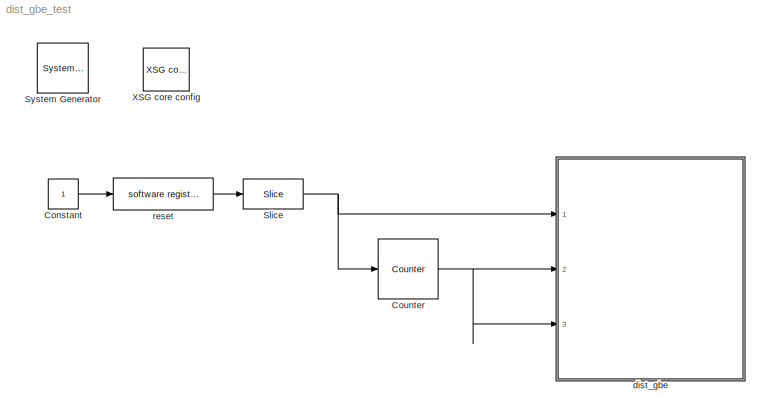
MODEL dist_gbe_test
KIND model
BLOCK [Reference]  System Generator  REF=xbsIndex_r4/ System Generator
  AttributesFormatString = System\\nGenerator
  FunctionWithSeparateData = off
  Ports = []
  RTWMemSecDataConstants = Inherit from model
  RTWMemSecDataInternal = Inherit from model
  RTWMemSecDataParameters = Inherit from model
  RTWMemSecFuncExecute = Inherit from model
  RTWMemSecFuncInitTerm = Inherit from model
  SID = 1
  ShowPortLabels = FromPortIcon
  SourceBlock = xbsIndex_r4/ System Generator
  SourceType = Xilinx System Generator Block
  SystemSampleTime = -1
  Tag = genX
  UserData = DataTag0
  UserDataPersistent = on
  block_type = sysgen
  block_version = 11.4
  clock_wrapper = Clock Enables
  core_generation = According to Block Masks
  dbl_ovrd = According to Block Masks
  dcm_input_clock_period = 100
  deprecated_control = off
  directory = ./dist_gbe_test/sysgen
  eval_field = 0
  has_advanced_control = 0
  incr_netlist = off
  infoedit = System Generator
  package = ff1136
  part = xc5vsx95t
  run_coregen = off
  sg_icon_stat = 51,50,-1,-1,red,beige,0,07734,right,
  sg_mask_display = fprintf('','COMMENT: begin icon graphics');\npatch([0 1 1 0 ],[0 0 1 1 ],[0.93 0.92 0.86]);\npatch([0.235294 0.0784314 0.313725 0.0784314 0.235294 0.490196 0.568627 0.647059 0.921569 0.705882 0.490196 0.333333 0.568627 0.333333 0.490196 0.705882 0.921569 0.647059 0.568627 0.490196 0.235294 ],[0.1 0.26 0.5 0.74 0.9 0.9 0.82 0.9 0.9 0.68 0.9 0.74 0.5 0.26 0.1 0.32 0.1 0.1 0.18 0.1 0.1 ],[0.6 0.2 0.2...<+163ch>
  sggui_pos = -1,-1,-1,-1
  simulink_period = 1
  speed = -1
  synthesis_tool = XST
  sysclk_period = 10
  testbench = off
  trim_vbits = Everywhere in SubSystem
  xilinxfamily = virtex5
BLOCK [Constant] Constant
  OutDataType = fixdt(1, 16)
  OutScaling = 2^0
  SID = 2
BLOCK [Reference] Counter  REF=xbsIndex_r4/Counter
  Ports = [1, 1]
  SID = 3
  SourceBlock = xbsIndex_r4/Counter
  SourceType = Xilinx Counter Block
  arith_type = Unsigned
  bin_pt = 0
  block_type = counter
  block_version = 11.4
  cnt_by_val = 1
  cnt_to = Inf
  cnt_type = Free Running
  dbl_ovrd = off
  en = off
  explicit_period = on
  has_advanced_control = 0
  implementation = Fabric
  infoedit = Hardware notes: Free running counters are the least expensive in hardware.  A count limited counter is implemented by combining a counter with a comparator.
  load_pin = off
  n_bits = 64
  operation = Up
  period = 1
  rst = on
  sg_icon_stat = 60,60,1,1,white,blue,0,c59595e6,right,
  sg_mask_display = fprintf('','COMMENT: begin icon graphics');\npatch([0 1 1 0 ],[0 0 1 1 ],[0.77 0.82 0.91]);\npatch([0.233333 0.0666667 0.3 0.0666667 0.233333 0.5 0.566667 0.633333 0.916667 0.7 0.483333 0.333333 0.583333 0.333333 0.483333 0.7 0.916667 0.633333 0.566667 0.5 0.233333 ],[0.1 0.266667 0.5 0.733333 0.9 0.9 0.833333 0.9 0.9 0.683333 0.9 0.75 0.5 0.25 0.1 0.316667 0.1 0.1 0.166667 0.1 0.1 ],[0.98 0.96 0....<+255ch>
  sggui_pos = -1,-1,-1,-1
  start_count = 0
  use_behavioral_HDL = off
  xl_area = [0,0,0,0,0,0,0]
  xl_use_area = off
BLOCK [Reference] Slice  REF=xbsIndex_r4/Slice
  Ports = [1, 1]
  SID = 4
  SourceBlock = xbsIndex_r4/Slice
  SourceType = Xilinx Bit Slice Extractor Block
  base0 = LSB of Input
  base1 = MSB of Input
  bit0 = 0
  bit1 = 0
  block_type = slice
  block_version = 11.4
  boolean_output = on
  dbl_ovrd = off
  has_advanced_control = 0
  infoedit = Extracts a given range of bits from each input sample and presents it at the output.  The output type is ordinarily unsigned with binary point at zero, but can be Boolean when the slice is one bit wide.<br><br>Hardware notes: In hardware this block costs nothing.  <repeated x3 — deduplicated; at blocks: Slice, Slice1>
  mode = Upper Bit Location + Width
  nbits = 1
  sg_icon_stat = 60,30,1,1,white,blue,0,1fd851a7,right,
  sg_mask_display = fprintf('','COMMENT: begin icon graphics');\npatch([0 1 1 0 ],[0 0 1 1 ],[0.77 0.82 0.91]);\npatch([0.366667 0.283333 0.4 0.283333 0.366667 0.5 0.533333 0.566667 0.7 0.583333 0.483333 0.4 0.5 0.4 0.483333 0.583333 0.7 0.566667 0.533333 0.5 0.366667 ],[0.1 0.266667 0.5 0.733333 0.9 0.9 0.833333 0.9 0.9 0.666667 0.866667 0.7 0.5 0.3 0.133333 0.333333 0.1 0.1 0.166667 0.1 0.1 ],[0.98 0.96 0.92]);\npl...<+203ch>
  sggui_pos = -1,-1,-1,-1
BLOCK [Reference] XSG core config  REF=xps_library/XSG core config  (lib defined in mdl_00b5cec29cd0, mdl_02ab6ecaa3d1, +5 more)
  BEE2_ctrl_clk_src = sys_clk
  BEE2_usr_clk_src = sys_clk
  CORR_clk_src = sys_clk
  FunctionWithSeparateData = off
  Ports = []
  ROACH_clk_src = sys_clk
  RTWMemSecDataConstants = Inherit from model
  RTWMemSecDataInternal = Inherit from model
  RTWMemSecDataParameters = Inherit from model
  RTWMemSecFuncExecute = Inherit from model
  RTWMemSecFuncInitTerm = Inherit from model
  SID = 5
  ShowPortLabels = FromPortIcon
  SourceBlock = xps_library/XSG core config
  SourceType = xsg core config
  SystemSampleTime = -1
  Tag = xps:xsg
  clk_rate = 100
  clk_src = sys_clk
  gpio_clk_bit_index = 0
  gpio_clk_io_group = iBOB:sma
  hw_sys = ROACH:sx95t
  iBOB_clk_src = sys_clk
  ibob_linux = off
  mpc_type = powerpc440_ext
  sample_period = 1
  synthesis_tool = XST
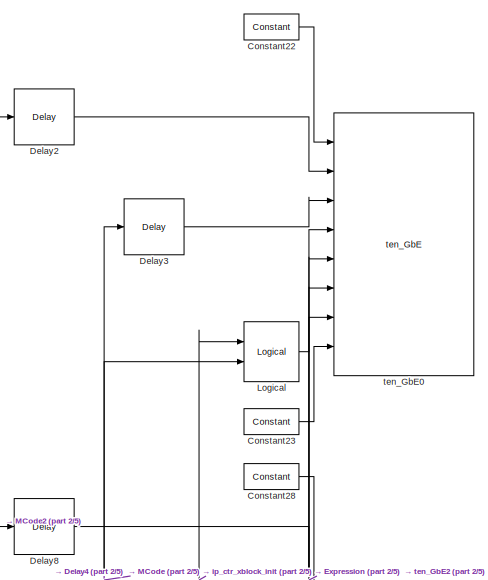
[diagram: dist_gbe - part 1/5, top center region]
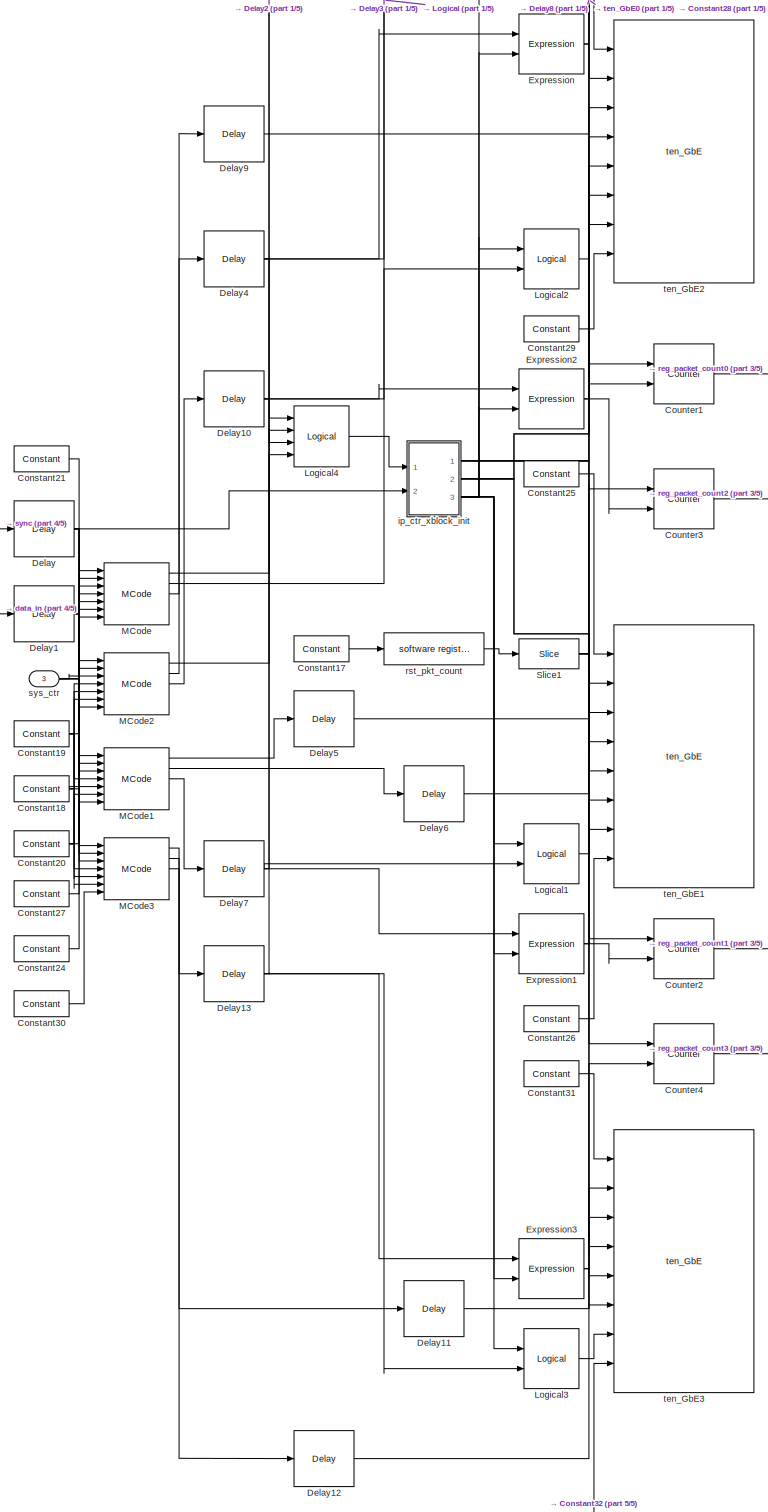
[diagram: dist_gbe - part 2/5, full width, middle band]
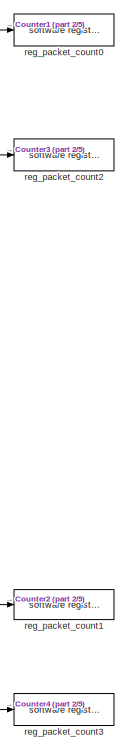
[diagram: dist_gbe - part 3/5, middle right region]
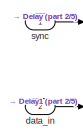
[diagram: dist_gbe - part 4/5, middle left region]
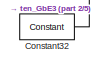
[diagram: dist_gbe - part 5/5, bottom center region]
BLOCK [SubSystem] dist_gbe
  FunctionWithSeparateData = off
  MaskCallbackString = ||
  MaskEnableString = on,on,on
  MaskHideContents = off
  MaskIconFrame = on
  MaskIconOpaque = on
  MaskIconRotate = none
  MaskIconUnits = autoscale
  MaskInitialization = cfg.source = str2func('dist_gbe_xblock_init');\ncfg.toplevel = gcb;\ncfg.depend = {'dist_gbe_xblock_init'};\nargs = {numcomputers,samplesperpacket,numtengbe};\nxBlock(cfg, args);
  MaskPortRotate = default
  MaskPromptString = Num IPs (Must be power of 2)|Samples per packet (Number of samples to put in a packet)|Number of tengbe ports
  MaskSelfModifiable = on
  MaskStyleString = edit,edit,edit
  MaskToolTipString = on,on,on
  MaskTunableValueString = on,on,on
  MaskType = dist_gbe
  MaskValueString = 8|1024|4
  MaskVariables = numcomputers=@1;samplesperpacket=@2;numtengbe=@3;
  MaskVisibilityString = on,on,on
  MinAlgLoopOccurrences = off
  Opaque = off
  Ports = [3]
  PropExecContextOutsideSubsystem = off
  RTWSystemCode = Auto
  RequestExecContextInheritance = off
  SID = 100
  UserData = DataTag1
  UserDataPersistent = on
BLOCK [Reference] dist_gbe/Constant17  REF=xbsIndex_r4/Constant
  Ports = [0, 1]
  SID = 2082
  SourceBlock = xbsIndex_r4/Constant
  SourceType = Xilinx Constant Block Block
  arith_type = Signed (2's comp)
  bin_pt = 14
  block_type = constant
  block_version = 11.4
  carry = CIN
  const = 0
  dbl_ovrd = off
  dsp48_infoedit = The use of this block for DSP48 instructions is deprecated.  Please use the Opmode block.
  equ = P=C
  explicit_period = on
  has_advanced_control = 0
  inp1 = P
  inp2 = PCIN>>17
  n_bits = 16
  opr = +
  opselect = C
  period = 1
  sg_icon_stat = 55,26,0,1,white,blue,0,bf4ddd8b,right,
  sg_mask_display = fprintf('','COMMENT: begin icon graphics');\npatch([0 1 1 0 ],[0 0 1 1 ],[0.77 0.82 0.91]);\npatch([0.363636 0.290909 0.4 0.290909 0.363636 0.490909 0.527273 0.563636 0.690909 0.581818 0.472727 0.4 0.509091 0.4 0.472727 0.581818 0.690909 0.563636 0.527273 0.490909 0.363636 ],[0.115385 0.269231 0.5 0.730769 0.884615 0.884615 0.807692 0.884615 0.884615 0.653846 0.884615 0.730769 0.5 0.269231 0.11538...<+279ch>  <repeated x16 — deduplicated; at blocks: Constant17, Constant18, Constant20, Constant21, Constant22, Constant23, Constant24, Constant25, Constant26, Constant27, Constant28, Constant29, Constant30, Constant31, Constant32, Constant>
  sggui_pos = -1,-1,-1,-1
BLOCK [Reference] dist_gbe/Constant18  REF=xbsIndex_r4/Constant
  Ports = [0, 1]
  SID = 2085
  SourceBlock = xbsIndex_r4/Constant
  SourceType = Xilinx Constant Block Block
  arith_type = Signed (2's comp)
  bin_pt = 0
  block_type = constant
  block_version = 11.4
  carry = CIN
  const = 8
  dbl_ovrd = off
  dsp48_infoedit = The use of this block for DSP48 instructions is deprecated.  Please use the Opmode block.
  equ = P=C
  explicit_period = on
  has_advanced_control = 0
  inp1 = P
  inp2 = PCIN>>17
  n_bits = 32
  opr = +
  opselect = C
  period = 1
  sg_icon_stat = 55,26,0,1,white,blue,0,7a8c02d8,right,
  sggui_pos = -1,-1,-1,-1
BLOCK [Reference] dist_gbe/Constant19  REF=xbsIndex_r4/Constant
  Ports = [0, 1]
  SID = 2086
  SourceBlock = xbsIndex_r4/Constant
  SourceType = Xilinx Constant Block Block
  arith_type = Signed (2's comp)
  bin_pt = 0
  block_type = constant
  block_version = 11.4
  carry = CIN
  const = 1024
  dbl_ovrd = off
  dsp48_infoedit = The use of this block for DSP48 instructions is deprecated.  Please use the Opmode block.
  equ = P=C
  explicit_period = on
  has_advanced_control = 0
  inp1 = P
  inp2 = PCIN>>17
  n_bits = 32
  opr = +
  opselect = C
  period = 1
  sg_icon_stat = 55,26,0,1,white,blue,0,7448ee09,right,
  sg_mask_display = fprintf('','COMMENT: begin icon graphics');\npatch([0 1 1 0 ],[0 0 1 1 ],[0.77 0.82 0.91]);\npatch([0.363636 0.290909 0.4 0.290909 0.363636 0.490909 0.527273 0.563636 0.690909 0.581818 0.472727 0.4 0.509091 0.4 0.472727 0.581818 0.690909 0.563636 0.527273 0.490909 0.363636 ],[0.115385 0.269231 0.5 0.730769 0.884615 0.884615 0.807692 0.884615 0.884615 0.653846 0.884615 0.730769 0.5 0.269231 0.11538...<+282ch>  <repeated x17 — deduplicated; at blocks: Constant19, Constant1, Constant10, Constant11, Constant12, Constant13, Constant14, Constant15, Constant16, Constant2, Constant3, Constant4, Constant5, Constant6, Constant7, Constant8, +1 more>
  sggui_pos = -1,-1,-1,-1
BLOCK [Reference] dist_gbe/Constant20  REF=xbsIndex_r4/Constant
  Ports = [0, 1]
  SID = 2087
  SourceBlock = xbsIndex_r4/Constant
  SourceType = Xilinx Constant Block Block
  arith_type = Signed (2's comp)
  bin_pt = 0
  block_type = constant
  block_version = 11.4
  carry = CIN
  const = 4
  dbl_ovrd = off
  dsp48_infoedit = The use of this block for DSP48 instructions is deprecated.  Please use the Opmode block.
  equ = P=C
  explicit_period = on
  has_advanced_control = 0
  inp1 = P
  inp2 = PCIN>>17
  n_bits = 32
  opr = +
  opselect = C
  period = 1
  sg_icon_stat = 55,26,0,1,white,blue,0,85f36853,right,
  sggui_pos = -1,-1,-1,-1
BLOCK [Reference] dist_gbe/Constant21  REF=xbsIndex_r4/Constant
  Ports = [0, 1]
  SID = 2088
  SourceBlock = xbsIndex_r4/Constant
  SourceType = Xilinx Constant Block Block
  arith_type = Signed (2's comp)
  bin_pt = 0
  block_type = constant
  block_version = 11.4
  carry = CIN
  const = 0
  dbl_ovrd = off
  dsp48_infoedit = The use of this block for DSP48 instructions is deprecated.  Please use the Opmode block.
  equ = P=C
  explicit_period = on
  has_advanced_control = 0
  inp1 = P
  inp2 = PCIN>>17
  n_bits = 32
  opr = +
  opselect = C
  period = 1
  sg_icon_stat = 55,26,0,1,white,blue,0,bf4ddd8b,right,
  sggui_pos = -1,-1,-1,-1
BLOCK [Reference] dist_gbe/Constant22  REF=xbsIndex_r4/Constant
  Ports = [0, 1]
  SID = 2093
  SourceBlock = xbsIndex_r4/Constant
  SourceType = Xilinx Constant Block Block
  arith_type = Boolean
  bin_pt = 14
  block_type = constant
  block_version = 11.4
  carry = CIN
  const = 0
  dbl_ovrd = off
  dsp48_infoedit = The use of this block for DSP48 instructions is deprecated.  Please use the Opmode block.
  equ = P=C
  explicit_period = on
  has_advanced_control = 0
  inp1 = P
  inp2 = PCIN>>17
  n_bits = 16
  opr = +
  opselect = C
  period = 1
  sg_icon_stat = 55,26,0,1,white,blue,0,bf4ddd8b,right,
  sggui_pos = -1,-1,-1,-1
BLOCK [Reference] dist_gbe/Constant23  REF=xbsIndex_r4/Constant
  Ports = [0, 1]
  SID = 2096
  SourceBlock = xbsIndex_r4/Constant
  SourceType = Xilinx Constant Block Block
  arith_type = Boolean
  bin_pt = 14
  block_type = constant
  block_version = 11.4
  carry = CIN
  const = 0
  dbl_ovrd = off
  dsp48_infoedit = The use of this block for DSP48 instructions is deprecated.  Please use the Opmode block.
  equ = P=C
  explicit_period = on
  has_advanced_control = 0
  inp1 = P
  inp2 = PCIN>>17
  n_bits = 16
  opr = +
  opselect = C
  period = 1
  sg_icon_stat = 55,26,0,1,white,blue,0,bf4ddd8b,right,
  sggui_pos = -1,-1,-1,-1
BLOCK [Reference] dist_gbe/Constant24  REF=xbsIndex_r4/Constant
  Ports = [0, 1]
  SID = 2100
  SourceBlock = xbsIndex_r4/Constant
  SourceType = Xilinx Constant Block Block
  arith_type = Signed (2's comp)
  bin_pt = 0
  block_type = constant
  block_version = 11.4
  carry = CIN
  const = 1
  dbl_ovrd = off
  dsp48_infoedit = The use of this block for DSP48 instructions is deprecated.  Please use the Opmode block.
  equ = P=C
  explicit_period = on
  has_advanced_control = 0
  inp1 = P
  inp2 = PCIN>>17
  n_bits = 32
  opr = +
  opselect = C
  period = 1
  sg_icon_stat = 55,26,0,1,white,blue,0,1c72b5be,right,
  sggui_pos = -1,-1,-1,-1
BLOCK [Reference] dist_gbe/Constant25  REF=xbsIndex_r4/Constant
  Ports = [0, 1]
  SID = 2105
  SourceBlock = xbsIndex_r4/Constant
  SourceType = Xilinx Constant Block Block
  arith_type = Boolean
  bin_pt = 14
  block_type = constant
  block_version = 11.4
  carry = CIN
  const = 0
  dbl_ovrd = off
  dsp48_infoedit = The use of this block for DSP48 instructions is deprecated.  Please use the Opmode block.
  equ = P=C
  explicit_period = on
  has_advanced_control = 0
  inp1 = P
  inp2 = PCIN>>17
  n_bits = 16
  opr = +
  opselect = C
  period = 1
  sg_icon_stat = 55,26,0,1,white,blue,0,bf4ddd8b,right,
  sggui_pos = -1,-1,-1,-1
BLOCK [Reference] dist_gbe/Constant26  REF=xbsIndex_r4/Constant
  Ports = [0, 1]
  SID = 2108
  SourceBlock = xbsIndex_r4/Constant
  SourceType = Xilinx Constant Block Block
  arith_type = Boolean
  bin_pt = 14
  block_type = constant
  block_version = 11.4
  carry = CIN
  const = 0
  dbl_ovrd = off
  dsp48_infoedit = The use of this block for DSP48 instructions is deprecated.  Please use the Opmode block.
  equ = P=C
  explicit_period = on
  has_advanced_control = 0
  inp1 = P
  inp2 = PCIN>>17
  n_bits = 16
  opr = +
  opselect = C
  period = 1
  sg_icon_stat = 55,26,0,1,white,blue,0,bf4ddd8b,right,
  sggui_pos = -1,-1,-1,-1
BLOCK [Reference] dist_gbe/Constant27  REF=xbsIndex_r4/Constant
  Ports = [0, 1]
  SID = 2112
  SourceBlock = xbsIndex_r4/Constant
  SourceType = Xilinx Constant Block Block
  arith_type = Signed (2's comp)
  bin_pt = 0
  block_type = constant
  block_version = 11.4
  carry = CIN
  const = 2
  dbl_ovrd = off
  dsp48_infoedit = The use of this block for DSP48 instructions is deprecated.  Please use the Opmode block.
  equ = P=C
  explicit_period = on
  has_advanced_control = 0
  inp1 = P
  inp2 = PCIN>>17
  n_bits = 32
  opr = +
  opselect = C
  period = 1
  sg_icon_stat = 55,26,0,1,white,blue,0,fca86624,right,
  sggui_pos = -1,-1,-1,-1
BLOCK [Reference] dist_gbe/Constant28  REF=xbsIndex_r4/Constant
  Ports = [0, 1]
  SID = 2117
  SourceBlock = xbsIndex_r4/Constant
  SourceType = Xilinx Constant Block Block
  arith_type = Boolean
  bin_pt = 14
  block_type = constant
  block_version = 11.4
  carry = CIN
  const = 0
  dbl_ovrd = off
  dsp48_infoedit = The use of this block for DSP48 instructions is deprecated.  Please use the Opmode block.
  equ = P=C
  explicit_period = on
  has_advanced_control = 0
  inp1 = P
  inp2 = PCIN>>17
  n_bits = 16
  opr = +
  opselect = C
  period = 1
  sg_icon_stat = 55,26,0,1,white,blue,0,bf4ddd8b,right,
  sggui_pos = -1,-1,-1,-1
BLOCK [Reference] dist_gbe/Constant29  REF=xbsIndex_r4/Constant
  Ports = [0, 1]
  SID = 2120
  SourceBlock = xbsIndex_r4/Constant
  SourceType = Xilinx Constant Block Block
  arith_type = Boolean
  bin_pt = 14
  block_type = constant
  block_version = 11.4
  carry = CIN
  const = 0
  dbl_ovrd = off
  dsp48_infoedit = The use of this block for DSP48 instructions is deprecated.  Please use the Opmode block.
  equ = P=C
  explicit_period = on
  has_advanced_control = 0
  inp1 = P
  inp2 = PCIN>>17
  n_bits = 16
  opr = +
  opselect = C
  period = 1
  sg_icon_stat = 55,26,0,1,white,blue,0,bf4ddd8b,right,
  sggui_pos = -1,-1,-1,-1
BLOCK [Reference] dist_gbe/Constant30  REF=xbsIndex_r4/Constant
  Ports = [0, 1]
  SID = 2124
  SourceBlock = xbsIndex_r4/Constant
  SourceType = Xilinx Constant Block Block
  arith_type = Signed (2's comp)
  bin_pt = 0
  block_type = constant
  block_version = 11.4
  carry = CIN
  const = 3
  dbl_ovrd = off
  dsp48_infoedit = The use of this block for DSP48 instructions is deprecated.  Please use the Opmode block.
  equ = P=C
  explicit_period = on
  has_advanced_control = 0
  inp1 = P
  inp2 = PCIN>>17
  n_bits = 32
  opr = +
  opselect = C
  period = 1
  sg_icon_stat = 55,26,0,1,white,blue,0,279a71c8,right,
  sggui_pos = -1,-1,-1,-1
BLOCK [Reference] dist_gbe/Constant31  REF=xbsIndex_r4/Constant
  Ports = [0, 1]
  SID = 2129
  SourceBlock = xbsIndex_r4/Constant
  SourceType = Xilinx Constant Block Block
  arith_type = Boolean
  bin_pt = 14
  block_type = constant
  block_version = 11.4
  carry = CIN
  const = 0
  dbl_ovrd = off
  dsp48_infoedit = The use of this block for DSP48 instructions is deprecated.  Please use the Opmode block.
  equ = P=C
  explicit_period = on
  has_advanced_control = 0
  inp1 = P
  inp2 = PCIN>>17
  n_bits = 16
  opr = +
  opselect = C
  period = 1
  sg_icon_stat = 55,26,0,1,white,blue,0,bf4ddd8b,right,
  sggui_pos = -1,-1,-1,-1
BLOCK [Reference] dist_gbe/Constant32  REF=xbsIndex_r4/Constant
  Ports = [0, 1]
  SID = 2132
  SourceBlock = xbsIndex_r4/Constant
  SourceType = Xilinx Constant Block Block
  arith_type = Boolean
  bin_pt = 14
  block_type = constant
  block_version = 11.4
  carry = CIN
  const = 0
  dbl_ovrd = off
  dsp48_infoedit = The use of this block for DSP48 instructions is deprecated.  Please use the Opmode block.
  equ = P=C
  explicit_period = on
  has_advanced_control = 0
  inp1 = P
  inp2 = PCIN>>17
  n_bits = 16
  opr = +
  opselect = C
  period = 1
  sg_icon_stat = 55,26,0,1,white,blue,0,bf4ddd8b,right,
  sggui_pos = -1,-1,-1,-1
BLOCK [Reference] dist_gbe/Counter1  REF=xbsIndex_r4/Counter
  Ports = [2, 1]
  SID = 2098
  SourceBlock = xbsIndex_r4/Counter
  SourceType = Xilinx Counter Block
  arith_type = Unsigned
  bin_pt = 0
  block_type = counter
  block_version = 11.4
  cnt_by_val = 1
  cnt_to = Inf
  cnt_type = Free Running
  dbl_ovrd = off
  en = on
  explicit_period = on
  has_advanced_control = 0
  implementation = Fabric
  infoedit = Hardware notes: Free running counters are the least expensive in hardware.  A count limited counter is implemented by combining a counter with a comparator.
  load_pin = off
  n_bits = 32
  operation = Up
  period = 1
  rst = on
  sg_icon_stat = 60,60,2,1,white,blue,0,d605779c,right,
  sg_mask_display = fprintf('','COMMENT: begin icon graphics');\npatch([0 1 1 0 ],[0 0 1 1 ],[0.77 0.82 0.91]);\npatch([0.233333 0.0666667 0.3 0.0666667 0.233333 0.5 0.566667 0.633333 0.916667 0.7 0.483333 0.333333 0.583333 0.333333 0.483333 0.7 0.916667 0.633333 0.566667 0.5 0.233333 ],[0.1 0.266667 0.5 0.733333 0.9 0.9 0.833333 0.9 0.9 0.683333 0.9 0.75 0.5 0.25 0.1 0.316667 0.1 0.1 0.166667 0.1 0.1 ],[0.98 0.96 0....<+299ch>  <repeated x5 — deduplicated; at blocks: Counter1, Counter2, Counter3, Counter4, Counter>
  sggui_pos = -1,-1,-1,-1
  start_count = 0
  use_behavioral_HDL = off
  xl_area = [0,0,0,0,0,0,0]
  xl_use_area = off
BLOCK [Reference] dist_gbe/Counter2  REF=xbsIndex_r4/Counter
  Ports = [2, 1]
  SID = 2110
  SourceBlock = xbsIndex_r4/Counter
  SourceType = Xilinx Counter Block
  arith_type = Unsigned
  bin_pt = 0
  block_type = counter
  block_version = 11.4
  cnt_by_val = 1
  cnt_to = Inf
  cnt_type = Free Running
  dbl_ovrd = off
  en = on
  explicit_period = on
  has_advanced_control = 0
  implementation = Fabric
  infoedit = Hardware notes: Free running counters are the least expensive in hardware.  A count limited counter is implemented by combining a counter with a comparator.
  load_pin = off
  n_bits = 32
  operation = Up
  period = 1
  rst = on
  sg_icon_stat = 60,60,2,1,white,blue,0,d605779c,right,
  sggui_pos = -1,-1,-1,-1
  start_count = 0
  use_behavioral_HDL = off
  xl_area = [0,0,0,0,0,0,0]
  xl_use_area = off
BLOCK [Reference] dist_gbe/Counter3  REF=xbsIndex_r4/Counter
  Ports = [2, 1]
  SID = 2122
  SourceBlock = xbsIndex_r4/Counter
  SourceType = Xilinx Counter Block
  arith_type = Unsigned
  bin_pt = 0
  block_type = counter
  block_version = 11.4
  cnt_by_val = 1
  cnt_to = Inf
  cnt_type = Free Running
  dbl_ovrd = off
  en = on
  explicit_period = on
  has_advanced_control = 0
  implementation = Fabric
  infoedit = Hardware notes: Free running counters are the least expensive in hardware.  A count limited counter is implemented by combining a counter with a comparator.
  load_pin = off
  n_bits = 32
  operation = Up
  period = 1
  rst = on
  sg_icon_stat = 60,60,2,1,white,blue,0,d605779c,right,
  sggui_pos = -1,-1,-1,-1
  start_count = 0
  use_behavioral_HDL = off
  xl_area = [0,0,0,0,0,0,0]
  xl_use_area = off
BLOCK [Reference] dist_gbe/Counter4  REF=xbsIndex_r4/Counter
  Ports = [2, 1]
  SID = 2134
  SourceBlock = xbsIndex_r4/Counter
  SourceType = Xilinx Counter Block
  arith_type = Unsigned
  bin_pt = 0
  block_type = counter
  block_version = 11.4
  cnt_by_val = 1
  cnt_to = Inf
  cnt_type = Free Running
  dbl_ovrd = off
  en = on
  explicit_period = on
  has_advanced_control = 0
  implementation = Fabric
  infoedit = Hardware notes: Free running counters are the least expensive in hardware.  A count limited counter is implemented by combining a counter with a comparator.
  load_pin = off
  n_bits = 32
  operation = Up
  period = 1
  rst = on
  sg_icon_stat = 60,60,2,1,white,blue,0,d605779c,right,
  sggui_pos = -1,-1,-1,-1
  start_count = 0
  use_behavioral_HDL = off
  xl_area = [0,0,0,0,0,0,0]
  xl_use_area = off
BLOCK [Reference] dist_gbe/Delay  REF=xbsIndex_r4/Delay
  Ports = [1, 1]
  SID = 2036
  SourceBlock = xbsIndex_r4/Delay
  SourceType = Xilinx Delay Block
  block_type = delay
  block_version = 11.4
  dbl_ovrd = off
  en = off
  has_advanced_control = 0
  infoedit = Hardware notes: A delay line is a chain, each link of which is an SRL16 followed by a flip-flop.
  latency = 3
  reg_retiming = on
  sg_icon_stat = 60,56,1,1,white,blue,0,83e6bb61,right,
  sg_mask_display = fprintf('','COMMENT: begin icon graphics');\npatch([0 1 1 0 ],[0 0 1 1 ],[0.77 0.82 0.91]);\npatch([0.25 0.1 0.316667 0.1 0.25 0.5 0.566667 0.633333 0.9 0.683333 0.483333 0.333333 0.533333 0.333333 0.483333 0.683333 0.9 0.633333 0.566667 0.5 0.25 ],[0.107143 0.267857 0.5 0.732143 0.892857 0.892857 0.821429 0.892857 0.892857 0.660714 0.875 0.714286 0.5 0.285714 0.125 0.339286 0.107143 0.107143 0.17...<+249ch>  <repeated x14 — deduplicated; at blocks: Delay, Delay1, Delay10, Delay11, Delay12, Delay13, Delay2, Delay3, Delay4, Delay5, Delay6, Delay7, Delay8, Delay9>
  sggui_pos = -1,-1,-1,-1
  xl_area = [0,0,0,0,0,0,0]
  xl_use_area = off
BLOCK [Reference] dist_gbe/Delay1  REF=xbsIndex_r4/Delay
  Ports = [1, 1]
  SID = 2037
  SourceBlock = xbsIndex_r4/Delay
  SourceType = Xilinx Delay Block
  block_type = delay
  block_version = 11.4
  dbl_ovrd = off
  en = off
  has_advanced_control = 0
  infoedit = Hardware notes: A delay line is a chain, each link of which is an SRL16 followed by a flip-flop.
  latency = 3
  reg_retiming = on
  sg_icon_stat = 60,56,1,1,white,blue,0,83e6bb61,right,
  sggui_pos = -1,-1,-1,-1
  xl_area = [0,0,0,0,0,0,0]
  xl_use_area = off
BLOCK [Reference] dist_gbe/Delay10  REF=xbsIndex_r4/Delay
  Ports = [1, 1]
  SID = 2116
  SourceBlock = xbsIndex_r4/Delay
  SourceType = Xilinx Delay Block
  block_type = delay
  block_version = 11.4
  dbl_ovrd = off
  en = off
  has_advanced_control = 0
  infoedit = Hardware notes: A delay line is a chain, each link of which is an SRL16 followed by a flip-flop.
  latency = 2
  reg_retiming = on
  sg_icon_stat = 60,56,1,1,white,blue,0,85ce9542,right,
  sggui_pos = -1,-1,-1,-1
  xl_area = [0,0,0,0,0,0,0]
  xl_use_area = off
BLOCK [Reference] dist_gbe/Delay11  REF=xbsIndex_r4/Delay
  Ports = [1, 1]
  SID = 2126
  SourceBlock = xbsIndex_r4/Delay
  SourceType = Xilinx Delay Block
  block_type = delay
  block_version = 11.4
  dbl_ovrd = off
  en = off
  has_advanced_control = 0
  infoedit = Hardware notes: A delay line is a chain, each link of which is an SRL16 followed by a flip-flop.
  latency = 2
  reg_retiming = on
  sg_icon_stat = 60,56,1,1,white,blue,0,85ce9542,right,
  sggui_pos = -1,-1,-1,-1
  xl_area = [0,0,0,0,0,0,0]
  xl_use_area = off
BLOCK [Reference] dist_gbe/Delay12  REF=xbsIndex_r4/Delay
  Ports = [1, 1]
  SID = 2127
  SourceBlock = xbsIndex_r4/Delay
  SourceType = Xilinx Delay Block
  block_type = delay
  block_version = 11.4
  dbl_ovrd = off
  en = off
  has_advanced_control = 0
  infoedit = Hardware notes: A delay line is a chain, each link of which is an SRL16 followed by a flip-flop.
  latency = 2
  reg_retiming = on
  sg_icon_stat = 60,56,1,1,white,blue,0,85ce9542,right,
  sggui_pos = -1,-1,-1,-1
  xl_area = [0,0,0,0,0,0,0]
  xl_use_area = off
BLOCK [Reference] dist_gbe/Delay13  REF=xbsIndex_r4/Delay
  Ports = [1, 1]
  SID = 2128
  SourceBlock = xbsIndex_r4/Delay
  SourceType = Xilinx Delay Block
  block_type = delay
  block_version = 11.4
  dbl_ovrd = off
  en = off
  has_advanced_control = 0
  infoedit = Hardware notes: A delay line is a chain, each link of which is an SRL16 followed by a flip-flop.
  latency = 2
  reg_retiming = on
  sg_icon_stat = 60,56,1,1,white,blue,0,85ce9542,right,
  sggui_pos = -1,-1,-1,-1
  xl_area = [0,0,0,0,0,0,0]
  xl_use_area = off
BLOCK [Reference] dist_gbe/Delay2  REF=xbsIndex_r4/Delay
  Ports = [1, 1]
  SID = 2090
  SourceBlock = xbsIndex_r4/Delay
  SourceType = Xilinx Delay Block
  block_type = delay
  block_version = 11.4
  dbl_ovrd = off
  en = off
  has_advanced_control = 0
  infoedit = Hardware notes: A delay line is a chain, each link of which is an SRL16 followed by a flip-flop.
  latency = 2
  reg_retiming = on
  sg_icon_stat = 60,56,1,1,white,blue,0,85ce9542,right,
  sggui_pos = -1,-1,-1,-1
  xl_area = [0,0,0,0,0,0,0]
  xl_use_area = off
BLOCK [Reference] dist_gbe/Delay3  REF=xbsIndex_r4/Delay
  Ports = [1, 1]
  SID = 2091
  SourceBlock = xbsIndex_r4/Delay
  SourceType = Xilinx Delay Block
  block_type = delay
  block_version = 11.4
  dbl_ovrd = off
  en = off
  has_advanced_control = 0
  infoedit = Hardware notes: A delay line is a chain, each link of which is an SRL16 followed by a flip-flop.
  latency = 2
  reg_retiming = on
  sg_icon_stat = 60,56,1,1,white,blue,0,85ce9542,right,
  sggui_pos = -1,-1,-1,-1
  xl_area = [0,0,0,0,0,0,0]
  xl_use_area = off
BLOCK [Reference] dist_gbe/Delay4  REF=xbsIndex_r4/Delay
  Ports = [1, 1]
  SID = 2092
  SourceBlock = xbsIndex_r4/Delay
  SourceType = Xilinx Delay Block
  block_type = delay
  block_version = 11.4
  dbl_ovrd = off
  en = off
  has_advanced_control = 0
  infoedit = Hardware notes: A delay line is a chain, each link of which is an SRL16 followed by a flip-flop.
  latency = 2
  reg_retiming = on
  sg_icon_stat = 60,56,1,1,white,blue,0,85ce9542,right,
  sggui_pos = -1,-1,-1,-1
  xl_area = [0,0,0,0,0,0,0]
  xl_use_area = off
BLOCK [Reference] dist_gbe/Delay5  REF=xbsIndex_r4/Delay
  Ports = [1, 1]
  SID = 2102
  SourceBlock = xbsIndex_r4/Delay
  SourceType = Xilinx Delay Block
  block_type = delay
  block_version = 11.4
  dbl_ovrd = off
  en = off
  has_advanced_control = 0
  infoedit = Hardware notes: A delay line is a chain, each link of which is an SRL16 followed by a flip-flop.
  latency = 2
  reg_retiming = on
  sg_icon_stat = 60,56,1,1,white,blue,0,85ce9542,right,
  sggui_pos = -1,-1,-1,-1
  xl_area = [0,0,0,0,0,0,0]
  xl_use_area = off
BLOCK [Reference] dist_gbe/Delay6  REF=xbsIndex_r4/Delay
  Ports = [1, 1]
  SID = 2103
  SourceBlock = xbsIndex_r4/Delay
  SourceType = Xilinx Delay Block
  block_type = delay
  block_version = 11.4
  dbl_ovrd = off
  en = off
  has_advanced_control = 0
  infoedit = Hardware notes: A delay line is a chain, each link of which is an SRL16 followed by a flip-flop.
  latency = 2
  reg_retiming = on
  sg_icon_stat = 60,56,1,1,white,blue,0,85ce9542,right,
  sggui_pos = -1,-1,-1,-1
  xl_area = [0,0,0,0,0,0,0]
  xl_use_area = off
BLOCK [Reference] dist_gbe/Delay7  REF=xbsIndex_r4/Delay
  Ports = [1, 1]
  SID = 2104
  SourceBlock = xbsIndex_r4/Delay
  SourceType = Xilinx Delay Block
  block_type = delay
  block_version = 11.4
  dbl_ovrd = off
  en = off
  has_advanced_control = 0
  infoedit = Hardware notes: A delay line is a chain, each link of which is an SRL16 followed by a flip-flop.
  latency = 2
  reg_retiming = on
  sg_icon_stat = 60,56,1,1,white,blue,0,85ce9542,right,
  sggui_pos = -1,-1,-1,-1
  xl_area = [0,0,0,0,0,0,0]
  xl_use_area = off
BLOCK [Reference] dist_gbe/Delay8  REF=xbsIndex_r4/Delay
  Ports = [1, 1]
  SID = 2114
  SourceBlock = xbsIndex_r4/Delay
  SourceType = Xilinx Delay Block
  block_type = delay
  block_version = 11.4
  dbl_ovrd = off
  en = off
  has_advanced_control = 0
  infoedit = Hardware notes: A delay line is a chain, each link of which is an SRL16 followed by a flip-flop.
  latency = 2
  reg_retiming = on
  sg_icon_stat = 60,56,1,1,white,blue,0,85ce9542,right,
  sggui_pos = -1,-1,-1,-1
  xl_area = [0,0,0,0,0,0,0]
  xl_use_area = off
BLOCK [Reference] dist_gbe/Delay9  REF=xbsIndex_r4/Delay
  Ports = [1, 1]
  SID = 2115
  SourceBlock = xbsIndex_r4/Delay
  SourceType = Xilinx Delay Block
  block_type = delay
  block_version = 11.4
  dbl_ovrd = off
  en = off
  has_advanced_control = 0
  infoedit = Hardware notes: A delay line is a chain, each link of which is an SRL16 followed by a flip-flop.
  latency = 2
  reg_retiming = on
  sg_icon_stat = 60,56,1,1,white,blue,0,85ce9542,right,
  sggui_pos = -1,-1,-1,-1
  xl_area = [0,0,0,0,0,0,0]
  xl_use_area = off
BLOCK [Reference] dist_gbe/Expression  REF=xbsIndex_r4/Expression
  Ports = [2, 1]
  SID = 2094
  SourceBlock = xbsIndex_r4/Expression
  SourceType = Xilinx Bitwise Expression Evaluator Block
  align_bp = on
  arith_type = Unsigned
  bin_pt = 0
  block_type = expr
  block_version = 11.4
  dbl_ovrd = off
  en = off
  expression = a&~b
  has_advanced_control = 0
  latency = 0
  n_bits = 16
  precision = Full
  sg_icon_stat = 65,60,2,1,white,blue,0,0326c4ec,right,
  sg_mask_display = fprintf('','COMMENT: begin icon graphics');\npatch([0 1 1 0 ],[0 0 1 1 ],[0.77 0.82 0.91]);\npatch([0.261538 0.107692 0.323077 0.107692 0.261538 0.507692 0.569231 0.630769 0.892308 0.692308 0.492308 0.353846 0.584615 0.353846 0.492308 0.692308 0.892308 0.630769 0.569231 0.507692 0.261538 ],[0.1 0.266667 0.5 0.733333 0.9 0.9 0.833333 0.9 0.9 0.683333 0.9 0.75 0.5 0.25 0.1 0.316667 0.1 0.1 0.166667 ...<+303ch>  <repeated x4 — deduplicated; at blocks: Expression, Expression1, Expression2, Expression3>
  sggui_pos = -1,-1,-1,-1
  xl_area = [0,0,0,0,0,0,0]
  xl_use_area = off
BLOCK [Reference] dist_gbe/Expression1  REF=xbsIndex_r4/Expression
  Ports = [2, 1]
  SID = 2106
  SourceBlock = xbsIndex_r4/Expression
  SourceType = Xilinx Bitwise Expression Evaluator Block
  align_bp = on
  arith_type = Unsigned
  bin_pt = 0
  block_type = expr
  block_version = 11.4
  dbl_ovrd = off
  en = off
  expression = a&~b
  has_advanced_control = 0
  latency = 0
  n_bits = 16
  precision = Full
  sg_icon_stat = 65,60,2,1,white,blue,0,0326c4ec,right,
  sggui_pos = -1,-1,-1,-1
  xl_area = [0,0,0,0,0,0,0]
  xl_use_area = off
BLOCK [Reference] dist_gbe/Expression2  REF=xbsIndex_r4/Expression
  Ports = [2, 1]
  SID = 2118
  SourceBlock = xbsIndex_r4/Expression
  SourceType = Xilinx Bitwise Expression Evaluator Block
  align_bp = on
  arith_type = Unsigned
  bin_pt = 0
  block_type = expr
  block_version = 11.4
  dbl_ovrd = off
  en = off
  expression = a&~b
  has_advanced_control = 0
  latency = 0
  n_bits = 16
  precision = Full
  sg_icon_stat = 65,60,2,1,white,blue,0,0326c4ec,right,
  sggui_pos = -1,-1,-1,-1
  xl_area = [0,0,0,0,0,0,0]
  xl_use_area = off
BLOCK [Reference] dist_gbe/Expression3  REF=xbsIndex_r4/Expression
  Ports = [2, 1]
  SID = 2130
  SourceBlock = xbsIndex_r4/Expression
  SourceType = Xilinx Bitwise Expression Evaluator Block
  align_bp = on
  arith_type = Unsigned
  bin_pt = 0
  block_type = expr
  block_version = 11.4
  dbl_ovrd = off
  en = off
  expression = a&~b
  has_advanced_control = 0
  latency = 0
  n_bits = 16
  precision = Full
  sg_icon_stat = 65,60,2,1,white,blue,0,0326c4ec,right,
  sggui_pos = -1,-1,-1,-1
  xl_area = [0,0,0,0,0,0,0]
  xl_use_area = off
BLOCK [Reference] dist_gbe/Logical  REF=xbsIndex_r4/Logical
  Ports = [2, 1]
  SID = 2095
  SourceBlock = xbsIndex_r4/Logical
  SourceType = Xilinx Logical Block Block
  align_bp = on
  arith_type = Unsigned
  bin_pt = 0
  block_type = logical
  block_version = 11.4
  dbl_ovrd = off
  en = off
  has_advanced_control = 0
  inputs = 2
  latency = 0
  logical_function = AND
  n_bits = 16
  precision = Full
  sg_icon_stat = 55,60,2,1,white,blue,0,0a851f85,right,
  sg_mask_display = fprintf('','COMMENT: begin icon graphics');\npatch([0 1 1 0 ],[0 0 1 1 ],[0.77 0.82 0.91]);\npatch([0.236364 0.0727273 0.309091 0.0727273 0.236364 0.509091 0.581818 0.654545 0.945455 0.727273 0.509091 0.345455 0.581818 0.345455 0.509091 0.727273 0.945455 0.654545 0.581818 0.509091 0.236364 ],[0.133333 0.283333 0.5 0.716667 0.866667 0.866667 0.8 0.866667 0.866667 0.666667 0.866667 0.716667 0.5 0.28...<+310ch>  <repeated x4 — deduplicated; at blocks: Logical, Logical1, Logical2, Logical3>
  sggui_pos = -1,-1,-1,-1
  xl_area = [0,0,0,0,0,0,0]
  xl_use_area = off
BLOCK [Reference] dist_gbe/Logical1  REF=xbsIndex_r4/Logical
  Ports = [2, 1]
  SID = 2107
  SourceBlock = xbsIndex_r4/Logical
  SourceType = Xilinx Logical Block Block
  align_bp = on
  arith_type = Unsigned
  bin_pt = 0
  block_type = logical
  block_version = 11.4
  dbl_ovrd = off
  en = off
  has_advanced_control = 0
  inputs = 2
  latency = 0
  logical_function = AND
  n_bits = 16
  precision = Full
  sg_icon_stat = 55,60,2,1,white,blue,0,0a851f85,right,
  sggui_pos = -1,-1,-1,-1
  xl_area = [0,0,0,0,0,0,0]
  xl_use_area = off
BLOCK [Reference] dist_gbe/Logical2  REF=xbsIndex_r4/Logical
  Ports = [2, 1]
  SID = 2119
  SourceBlock = xbsIndex_r4/Logical
  SourceType = Xilinx Logical Block Block
  align_bp = on
  arith_type = Unsigned
  bin_pt = 0
  block_type = logical
  block_version = 11.4
  dbl_ovrd = off
  en = off
  has_advanced_control = 0
  inputs = 2
  latency = 0
  logical_function = AND
  n_bits = 16
  precision = Full
  sg_icon_stat = 55,60,2,1,white,blue,0,0a851f85,right,
  sggui_pos = -1,-1,-1,-1
  xl_area = [0,0,0,0,0,0,0]
  xl_use_area = off
BLOCK [Reference] dist_gbe/Logical3  REF=xbsIndex_r4/Logical
  Ports = [2, 1]
  SID = 2131
  SourceBlock = xbsIndex_r4/Logical
  SourceType = Xilinx Logical Block Block
  align_bp = on
  arith_type = Unsigned
  bin_pt = 0
  block_type = logical
  block_version = 11.4
  dbl_ovrd = off
  en = off
  has_advanced_control = 0
  inputs = 2
  latency = 0
  logical_function = AND
  n_bits = 16
  precision = Full
  sg_icon_stat = 55,60,2,1,white,blue,0,0a851f85,right,
  sggui_pos = -1,-1,-1,-1
  xl_area = [0,0,0,0,0,0,0]
  xl_use_area = off
BLOCK [Reference] dist_gbe/Logical4  REF=xbsIndex_r4/Logical
  Ports = [4, 1]
  SID = 2136
  SourceBlock = xbsIndex_r4/Logical
  SourceType = Xilinx Logical Block Block
  align_bp = on
  arith_type = Unsigned
  bin_pt = 0
  block_type = logical
  block_version = 11.4
  dbl_ovrd = off
  en = off
  has_advanced_control = 0
  inputs = 4
  latency = 0
  logical_function = OR
  n_bits = 16
  precision = Full
  sg_icon_stat = 55,61,4,1,white,blue,0,96d3e8c1,right,
  sg_mask_display = fprintf('','COMMENT: begin icon graphics');\npatch([0 1 1 0 ],[0 0 1 1 ],[0.77 0.82 0.91]);\npatch([0.236364 0.0727273 0.309091 0.0727273 0.236364 0.509091 0.581818 0.654545 0.945455 0.727273 0.509091 0.345455 0.581818 0.345455 0.509091 0.727273 0.945455 0.654545 0.581818 0.509091 0.236364 ],[0.147541 0.295082 0.508197 0.721311 0.868852 0.868852 0.803279 0.868852 0.868852 0.672131 0.868852 0.72131...<+329ch>
  sggui_pos = -1,-1,-1,-1
  xl_area = [0,0,0,0,0,0,0]
  xl_use_area = off
BLOCK [Reference] dist_gbe/MCode  REF=xbsIndex_r4/MCode
  Ports = [7, 5]
  SID = 2089
  SourceBlock = xbsIndex_r4/MCode
  SourceType = Xilinx MCode Block Block
  block_type = mcode
  block_version = 11.4
  dbl_ovrd = off
  defparams = {}
  enable_debug = off
  enable_stdout = off
  explicit_period = off
  has_advanced_control = 0
  hide_port_list = {}
  infoedit = Pass input values to a MATLAB function for evaluation in Xilinx fixed-point type. The input ports of the block are input arguments of the function. The output ports of the block are output arguments of the function.  <repeated x4 — deduplicated; at blocks: MCode, MCode1, MCode2, MCode3>
  mfname = packetizer.m
  period = 1
  sg_icon_stat = 65,62,7,5,white,blue,0,4e6a184f,right,
  sg_mask_display = fprintf('','COMMENT: begin icon graphics');\npatch([0 1 1 0 ],[0 0 1 1 ],[0.77 0.82 0.91]);\npatch([0.246154 0.0923077 0.323077 0.0923077 0.246154 0.492308 0.553846 0.615385 0.892308 0.676923 0.476923 0.323077 0.538462 0.323077 0.476923 0.676923 0.892308 0.615385 0.553846 0.492308 0.246154 ],[0.112903 0.274194 0.516129 0.758065 0.919355 0.919355 0.854839 0.919355 0.919355 0.693548 0.903226 0.74193...<+917ch>  <repeated x4 — deduplicated; at blocks: MCode, MCode1, MCode2, MCode3>
  sggui_pos = -1,-1,-1,-1
  suppress_output = on
  xl_area = [0,0,0,0,0,0,0]
  xl_use_area = off
BLOCK [Reference] dist_gbe/MCode1  REF=xbsIndex_r4/MCode
  Ports = [7, 5]
  SID = 2101
  SourceBlock = xbsIndex_r4/MCode
  SourceType = Xilinx MCode Block Block
  block_type = mcode
  block_version = 11.4
  dbl_ovrd = off
  defparams = {}
  enable_debug = off
  enable_stdout = off
  explicit_period = off
  has_advanced_control = 0
  hide_port_list = {}
  mfname = packetizer.m
  period = 1
  sg_icon_stat = 65,62,7,5,white,blue,0,4e6a184f,right,
  sggui_pos = -1,-1,-1,-1
  suppress_output = on
  xl_area = [0,0,0,0,0,0,0]
  xl_use_area = off
BLOCK [Reference] dist_gbe/MCode2  REF=xbsIndex_r4/MCode
  Ports = [7, 5]
  SID = 2113
  SourceBlock = xbsIndex_r4/MCode
  SourceType = Xilinx MCode Block Block
  block_type = mcode
  block_version = 11.4
  dbl_ovrd = off
  defparams = {}
  enable_debug = off
  enable_stdout = off
  explicit_period = off
  has_advanced_control = 0
  hide_port_list = {}
  mfname = packetizer.m
  period = 1
  sg_icon_stat = 65,62,7,5,white,blue,0,4e6a184f,right,
  sggui_pos = -1,-1,-1,-1
  suppress_output = on
  xl_area = [0,0,0,0,0,0,0]
  xl_use_area = off
BLOCK [Reference] dist_gbe/MCode3  REF=xbsIndex_r4/MCode
  Ports = [7, 5]
  SID = 2125
  SourceBlock = xbsIndex_r4/MCode
  SourceType = Xilinx MCode Block Block
  block_type = mcode
  block_version = 11.4
  dbl_ovrd = off
  defparams = {}
  enable_debug = off
  enable_stdout = off
  explicit_period = off
  has_advanced_control = 0
  hide_port_list = {}
  mfname = packetizer.m
  period = 1
  sg_icon_stat = 65,62,7,5,white,blue,0,4e6a184f,right,
  sggui_pos = -1,-1,-1,-1
  suppress_output = on
  xl_area = [0,0,0,0,0,0,0]
  xl_use_area = off
BLOCK [Reference] dist_gbe/Slice1  REF=xbsIndex_r4/Slice
  Ports = [1, 1]
  SID = 2084
  SourceBlock = xbsIndex_r4/Slice
  SourceType = Xilinx Bit Slice Extractor Block
  base0 = LSB of Input
  base1 = MSB of Input
  bit0 = 0
  bit1 = 0
  block_type = slice
  block_version = 11.4
  boolean_output = on
  dbl_ovrd = off
  has_advanced_control = 0
  mode = Upper Bit Location + Width
  nbits = 1
  sg_icon_stat = 60,30,1,1,white,blue,0,1fd851a7,right,
  sg_mask_display = fprintf('','COMMENT: begin icon graphics');\npatch([0 1 1 0 ],[0 0 1 1 ],[0.77 0.82 0.91]);\npatch([0.366667 0.283333 0.4 0.283333 0.366667 0.5 0.533333 0.566667 0.7 0.583333 0.483333 0.4 0.5 0.4 0.483333 0.583333 0.7 0.566667 0.533333 0.5 0.366667 ],[0.1 0.266667 0.5 0.733333 0.9 0.9 0.833333 0.9 0.9 0.666667 0.866667 0.7 0.5 0.3 0.133333 0.333333 0.1 0.1 0.166667 0.1 0.1 ],[0.98 0.96 0.92]);\npl...<+203ch>
  sggui_pos = -1,-1,-1,-1
BLOCK [Inport] dist_gbe/data_in
  IconDisplay = Port number
  Port = 2
  SID = 2
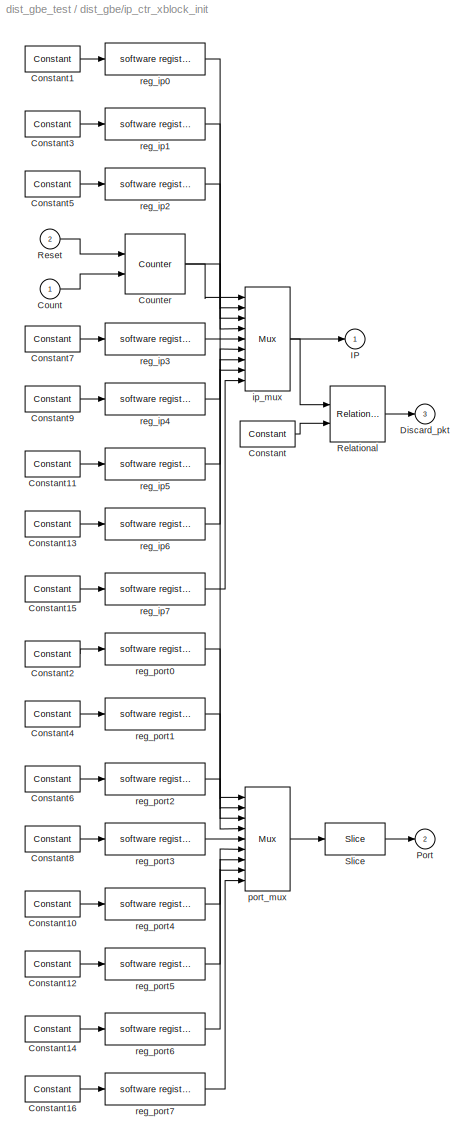
BLOCK [SubSystem] dist_gbe/ip_ctr_xblock_init
  FunctionWithSeparateData = off
  MaskHideContents = off
  MinAlgLoopOccurrences = off
  Opaque = off
  Ports = [2, 3]
  PropExecContextOutsideSubsystem = off
  RTWSystemCode = Auto
  RequestExecContextInheritance = off
  SID = 2038
BLOCK [Reference] dist_gbe/ip_ctr_xblock_init/Constant  REF=xbsIndex_r4/Constant
  Ports = [0, 1]
  SID = 2046
  SourceBlock = xbsIndex_r4/Constant
  SourceType = Xilinx Constant Block Block
  arith_type = Unsigned
  bin_pt = 0
  block_type = constant
  block_version = 11.4
  carry = CIN
  const = 0
  dbl_ovrd = off
  dsp48_infoedit = The use of this block for DSP48 instructions is deprecated.  Please use the Opmode block.
  equ = P=C
  explicit_period = on
  has_advanced_control = 0
  inp1 = P
  inp2 = PCIN>>17
  n_bits = 32
  opr = +
  opselect = C
  period = 1
  sg_icon_stat = 55,26,0,1,white,blue,0,bf4ddd8b,right,
  sggui_pos = -1,-1,-1,-1
BLOCK [Reference] dist_gbe/ip_ctr_xblock_init/Constant1  REF=xbsIndex_r4/Constant
  Ports = [0, 1]
  SID = 2049
  SourceBlock = xbsIndex_r4/Constant
  SourceType = Xilinx Constant Block Block
  arith_type = Signed (2's comp)
  bin_pt = 0
  block_type = constant
  block_version = 11.4
  carry = CIN
  const = 4001
  dbl_ovrd = off
  dsp48_infoedit = The use of this block for DSP48 instructions is deprecated.  Please use the Opmode block.
  equ = P=C
  explicit_period = on
  has_advanced_control = 0
  inp1 = P
  inp2 = PCIN>>17
  n_bits = 16
  opr = +
  opselect = C
  period = 1
  sg_icon_stat = 55,26,0,1,white,blue,0,d5bd095d,right,
  sggui_pos = -1,-1,-1,-1
BLOCK [Reference] dist_gbe/ip_ctr_xblock_init/Constant10  REF=xbsIndex_r4/Constant
  Ports = [0, 1]
  SID = 2067
  SourceBlock = xbsIndex_r4/Constant
  SourceType = Xilinx Constant Block Block
  arith_type = Signed (2's comp)
  bin_pt = 0
  block_type = constant
  block_version = 11.4
  carry = CIN
  const = 4005
  dbl_ovrd = off
  dsp48_infoedit = The use of this block for DSP48 instructions is deprecated.  Please use the Opmode block.
  equ = P=C
  explicit_period = on
  has_advanced_control = 0
  inp1 = P
  inp2 = PCIN>>17
  n_bits = 16
  opr = +
  opselect = C
  period = 1
  sg_icon_stat = 55,26,0,1,white,blue,0,09363874,right,
  sggui_pos = -1,-1,-1,-1
BLOCK [Reference] dist_gbe/ip_ctr_xblock_init/Constant11  REF=xbsIndex_r4/Constant
  Ports = [0, 1]
  SID = 2069
  SourceBlock = xbsIndex_r4/Constant
  SourceType = Xilinx Constant Block Block
  arith_type = Signed (2's comp)
  bin_pt = 0
  block_type = constant
  block_version = 11.4
  carry = CIN
  const = 4006
  dbl_ovrd = off
  dsp48_infoedit = The use of this block for DSP48 instructions is deprecated.  Please use the Opmode block.
  equ = P=C
  explicit_period = on
  has_advanced_control = 0
  inp1 = P
  inp2 = PCIN>>17
  n_bits = 16
  opr = +
  opselect = C
  period = 1
  sg_icon_stat = 55,26,0,1,white,blue,0,e39e3738,right,
  sggui_pos = -1,-1,-1,-1
BLOCK [Reference] dist_gbe/ip_ctr_xblock_init/Constant12  REF=xbsIndex_r4/Constant
  Ports = [0, 1]
  SID = 2071
  SourceBlock = xbsIndex_r4/Constant
  SourceType = Xilinx Constant Block Block
  arith_type = Signed (2's comp)
  bin_pt = 0
  block_type = constant
  block_version = 11.4
  carry = CIN
  const = 4006
  dbl_ovrd = off
  dsp48_infoedit = The use of this block for DSP48 instructions is deprecated.  Please use the Opmode block.
  equ = P=C
  explicit_period = on
  has_advanced_control = 0
  inp1 = P
  inp2 = PCIN>>17
  n_bits = 16
  opr = +
  opselect = C
  period = 1
  sg_icon_stat = 55,26,0,1,white,blue,0,e39e3738,right,
  sggui_pos = -1,-1,-1,-1
BLOCK [Reference] dist_gbe/ip_ctr_xblock_init/Constant13  REF=xbsIndex_r4/Constant
  Ports = [0, 1]
  SID = 2073
  SourceBlock = xbsIndex_r4/Constant
  SourceType = Xilinx Constant Block Block
  arith_type = Signed (2's comp)
  bin_pt = 0
  block_type = constant
  block_version = 11.4
  carry = CIN
  const = 4007
  dbl_ovrd = off
  dsp48_infoedit = The use of this block for DSP48 instructions is deprecated.  Please use the Opmode block.
  equ = P=C
  explicit_period = on
  has_advanced_control = 0
  inp1 = P
  inp2 = PCIN>>17
  n_bits = 16
  opr = +
  opselect = C
  period = 1
  sg_icon_stat = 55,26,0,1,white,blue,0,bd6267ca,right,
  sggui_pos = -1,-1,-1,-1
BLOCK [Reference] dist_gbe/ip_ctr_xblock_init/Constant14  REF=xbsIndex_r4/Constant
  Ports = [0, 1]
  SID = 2075
  SourceBlock = xbsIndex_r4/Constant
  SourceType = Xilinx Constant Block Block
  arith_type = Signed (2's comp)
  bin_pt = 0
  block_type = constant
  block_version = 11.4
  carry = CIN
  const = 4007
  dbl_ovrd = off
  dsp48_infoedit = The use of this block for DSP48 instructions is deprecated.  Please use the Opmode block.
  equ = P=C
  explicit_period = on
  has_advanced_control = 0
  inp1 = P
  inp2 = PCIN>>17
  n_bits = 16
  opr = +
  opselect = C
  period = 1
  sg_icon_stat = 55,26,0,1,white,blue,0,bd6267ca,right,
  sggui_pos = -1,-1,-1,-1
BLOCK [Reference] dist_gbe/ip_ctr_xblock_init/Constant15  REF=xbsIndex_r4/Constant
  Ports = [0, 1]
  SID = 2077
  SourceBlock = xbsIndex_r4/Constant
  SourceType = Xilinx Constant Block Block
  arith_type = Signed (2's comp)
  bin_pt = 0
  block_type = constant
  block_version = 11.4
  carry = CIN
  const = 4008
  dbl_ovrd = off
  dsp48_infoedit = The use of this block for DSP48 instructions is deprecated.  Please use the Opmode block.
  equ = P=C
  explicit_period = on
  has_advanced_control = 0
  inp1 = P
  inp2 = PCIN>>17
  n_bits = 16
  opr = +
  opselect = C
  period = 1
  sg_icon_stat = 55,26,0,1,white,blue,0,76b839f0,right,
  sggui_pos = -1,-1,-1,-1
BLOCK [Reference] dist_gbe/ip_ctr_xblock_init/Constant16  REF=xbsIndex_r4/Constant
  Ports = [0, 1]
  SID = 2079
  SourceBlock = xbsIndex_r4/Constant
  SourceType = Xilinx Constant Block Block
  arith_type = Signed (2's comp)
  bin_pt = 0
  block_type = constant
  block_version = 11.4
  carry = CIN
  const = 4008
  dbl_ovrd = off
  dsp48_infoedit = The use of this block for DSP48 instructions is deprecated.  Please use the Opmode block.
  equ = P=C
  explicit_period = on
  has_advanced_control = 0
  inp1 = P
  inp2 = PCIN>>17
  n_bits = 16
  opr = +
  opselect = C
  period = 1
  sg_icon_stat = 55,26,0,1,white,blue,0,76b839f0,right,
  sggui_pos = -1,-1,-1,-1
BLOCK [Reference] dist_gbe/ip_ctr_xblock_init/Constant2  REF=xbsIndex_r4/Constant
  Ports = [0, 1]
  SID = 2051
  SourceBlock = xbsIndex_r4/Constant
  SourceType = Xilinx Constant Block Block
  arith_type = Signed (2's comp)
  bin_pt = 0
  block_type = constant
  block_version = 11.4
  carry = CIN
  const = 4001
  dbl_ovrd = off
  dsp48_infoedit = The use of this block for DSP48 instructions is deprecated.  Please use the Opmode block.
  equ = P=C
  explicit_period = on
  has_advanced_control = 0
  inp1 = P
  inp2 = PCIN>>17
  n_bits = 16
  opr = +
  opselect = C
  period = 1
  sg_icon_stat = 55,26,0,1,white,blue,0,d5bd095d,right,
  sggui_pos = -1,-1,-1,-1
BLOCK [Reference] dist_gbe/ip_ctr_xblock_init/Constant3  REF=xbsIndex_r4/Constant
  Ports = [0, 1]
  SID = 2053
  SourceBlock = xbsIndex_r4/Constant
  SourceType = Xilinx Constant Block Block
  arith_type = Signed (2's comp)
  bin_pt = 0
  block_type = constant
  block_version = 11.4
  carry = CIN
  const = 4002
  dbl_ovrd = off
  dsp48_infoedit = The use of this block for DSP48 instructions is deprecated.  Please use the Opmode block.
  equ = P=C
  explicit_period = on
  has_advanced_control = 0
  inp1 = P
  inp2 = PCIN>>17
  n_bits = 16
  opr = +
  opselect = C
  period = 1
  sg_icon_stat = 55,26,0,1,white,blue,0,13806bfb,right,
  sggui_pos = -1,-1,-1,-1
BLOCK [Reference] dist_gbe/ip_ctr_xblock_init/Constant4  REF=xbsIndex_r4/Constant
  Ports = [0, 1]
  SID = 2055
  SourceBlock = xbsIndex_r4/Constant
  SourceType = Xilinx Constant Block Block
  arith_type = Signed (2's comp)
  bin_pt = 0
  block_type = constant
  block_version = 11.4
  carry = CIN
  const = 4002
  dbl_ovrd = off
  dsp48_infoedit = The use of this block for DSP48 instructions is deprecated.  Please use the Opmode block.
  equ = P=C
  explicit_period = on
  has_advanced_control = 0
  inp1 = P
  inp2 = PCIN>>17
  n_bits = 16
  opr = +
  opselect = C
  period = 1
  sg_icon_stat = 55,26,0,1,white,blue,0,13806bfb,right,
  sggui_pos = -1,-1,-1,-1
BLOCK [Reference] dist_gbe/ip_ctr_xblock_init/Constant5  REF=xbsIndex_r4/Constant
  Ports = [0, 1]
  SID = 2057
  SourceBlock = xbsIndex_r4/Constant
  SourceType = Xilinx Constant Block Block
  arith_type = Signed (2's comp)
  bin_pt = 0
  block_type = constant
  block_version = 11.4
  carry = CIN
  const = 4003
  dbl_ovrd = off
  dsp48_infoedit = The use of this block for DSP48 instructions is deprecated.  Please use the Opmode block.
  equ = P=C
  explicit_period = on
  has_advanced_control = 0
  inp1 = P
  inp2 = PCIN>>17
  n_bits = 16
  opr = +
  opselect = C
  period = 1
  sg_icon_stat = 55,26,0,1,white,blue,0,9fa8dcce,right,
  sggui_pos = -1,-1,-1,-1
BLOCK [Reference] dist_gbe/ip_ctr_xblock_init/Constant6  REF=xbsIndex_r4/Constant
  Ports = [0, 1]
  SID = 2059
  SourceBlock = xbsIndex_r4/Constant
  SourceType = Xilinx Constant Block Block
  arith_type = Signed (2's comp)
  bin_pt = 0
  block_type = constant
  block_version = 11.4
  carry = CIN
  const = 4003
  dbl_ovrd = off
  dsp48_infoedit = The use of this block for DSP48 instructions is deprecated.  Please use the Opmode block.
  equ = P=C
  explicit_period = on
  has_advanced_control = 0
  inp1 = P
  inp2 = PCIN>>17
  n_bits = 16
  opr = +
  opselect = C
  period = 1
  sg_icon_stat = 55,26,0,1,white,blue,0,9fa8dcce,right,
  sggui_pos = -1,-1,-1,-1
BLOCK [Reference] dist_gbe/ip_ctr_xblock_init/Constant7  REF=xbsIndex_r4/Constant
  Ports = [0, 1]
  SID = 2061
  SourceBlock = xbsIndex_r4/Constant
  SourceType = Xilinx Constant Block Block
  arith_type = Signed (2's comp)
  bin_pt = 0
  block_type = constant
  block_version = 11.4
  carry = CIN
  const = 4004
  dbl_ovrd = off
  dsp48_infoedit = The use of this block for DSP48 instructions is deprecated.  Please use the Opmode block.
  equ = P=C
  explicit_period = on
  has_advanced_control = 0
  inp1 = P
  inp2 = PCIN>>17
  n_bits = 16
  opr = +
  opselect = C
  period = 1
  sg_icon_stat = 55,26,0,1,white,blue,0,906f55ca,right,
  sggui_pos = -1,-1,-1,-1
BLOCK [Reference] dist_gbe/ip_ctr_xblock_init/Constant8  REF=xbsIndex_r4/Constant
  Ports = [0, 1]
  SID = 2063
  SourceBlock = xbsIndex_r4/Constant
  SourceType = Xilinx Constant Block Block
  arith_type = Signed (2's comp)
  bin_pt = 0
  block_type = constant
  block_version = 11.4
  carry = CIN
  const = 4004
  dbl_ovrd = off
  dsp48_infoedit = The use of this block for DSP48 instructions is deprecated.  Please use the Opmode block.
  equ = P=C
  explicit_period = on
  has_advanced_control = 0
  inp1 = P
  inp2 = PCIN>>17
  n_bits = 16
  opr = +
  opselect = C
  period = 1
  sg_icon_stat = 55,26,0,1,white,blue,0,906f55ca,right,
  sggui_pos = -1,-1,-1,-1
BLOCK [Reference] dist_gbe/ip_ctr_xblock_init/Constant9  REF=xbsIndex_r4/Constant
  Ports = [0, 1]
  SID = 2065
  SourceBlock = xbsIndex_r4/Constant
  SourceType = Xilinx Constant Block Block
  arith_type = Signed (2's comp)
  bin_pt = 0
  block_type = constant
  block_version = 11.4
  carry = CIN
  const = 4005
  dbl_ovrd = off
  dsp48_infoedit = The use of this block for DSP48 instructions is deprecated.  Please use the Opmode block.
  equ = P=C
  explicit_period = on
  has_advanced_control = 0
  inp1 = P
  inp2 = PCIN>>17
  n_bits = 16
  opr = +
  opselect = C
  period = 1
  sg_icon_stat = 55,26,0,1,white,blue,0,09363874,right,
  sggui_pos = -1,-1,-1,-1
BLOCK [Inport] dist_gbe/ip_ctr_xblock_init/Count
  IconDisplay = Port number
  SID = 2039
BLOCK [Reference] dist_gbe/ip_ctr_xblock_init/Counter  REF=xbsIndex_r4/Counter
  Ports = [2, 1]
  SID = 2045
  SourceBlock = xbsIndex_r4/Counter
  SourceType = Xilinx Counter Block
  arith_type = Unsigned
  bin_pt = 0
  block_type = counter
  block_version = 11.4
  cnt_by_val = 1
  cnt_to = Inf
  cnt_type = Free Running
  dbl_ovrd = off
  en = on
  explicit_period = on
  has_advanced_control = 0
  implementation = Fabric
  infoedit = Hardware notes: Free running counters are the least expensive in hardware.  A count limited counter is implemented by combining a counter with a comparator.
  load_pin = off
  n_bits = 3
  operation = Up
  period = 1
  rst = on
  sg_icon_stat = 60,60,2,1,white,blue,0,d605779c,right,
  sggui_pos = -1,-1,-1,-1
  start_count = 0
  use_behavioral_HDL = off
  xl_area = [0,0,0,0,0,0,0]
  xl_use_area = off
BLOCK [Outport] dist_gbe/ip_ctr_xblock_init/Discard_pkt
  IconDisplay = Port number
  Port = 3
  SID = 2044
BLOCK [Outport] dist_gbe/ip_ctr_xblock_init/IP
  IconDisplay = Port number
  SID = 2041
BLOCK [Outport] dist_gbe/ip_ctr_xblock_init/Port
  IconDisplay = Port number
  Port = 2
  SID = 2042
BLOCK [Reference] dist_gbe/ip_ctr_xblock_init/Relational  REF=xbsIndex_r4/Relational
  Ports = [2, 1]
  SID = 2047
  SourceBlock = xbsIndex_r4/Relational
  SourceType = Xilinx Arithmetic Relational Operator Block
  block_type = relational
  block_version = 11.4
  dbl_ovrd = off
  en = off
  has_advanced_control = 0
  latency = 1
  mode = a=b
  sg_icon_stat = 55,56,2,1,white,blue,0,2d4703fd,right,
  sg_mask_display = fprintf('','COMMENT: begin icon graphics');\npatch([0 1 1 0 ],[0 0 1 1 ],[0.77 0.82 0.91]);\npatch([0.236364 0.0727273 0.309091 0.0727273 0.236364 0.509091 0.581818 0.654545 0.945455 0.727273 0.509091 0.345455 0.581818 0.345455 0.509091 0.727273 0.945455 0.654545 0.581818 0.509091 0.236364 ],[0.107143 0.267857 0.5 0.732143 0.892857 0.892857 0.821429 0.892857 0.892857 0.678571 0.892857 0.732143 0.5...<+412ch>
  sggui_pos = -1,-1,-1,-1
  xl_area = [0,0,0,0,0,0,0]
  xl_use_area = off
BLOCK [Inport] dist_gbe/ip_ctr_xblock_init/Reset
  IconDisplay = Port number
  Port = 2
  SID = 2040
BLOCK [Reference] dist_gbe/ip_ctr_xblock_init/Slice  REF=xbsIndex_r4/Slice
  Ports = [1, 1]
  SID = 2043
  SourceBlock = xbsIndex_r4/Slice
  SourceType = Xilinx Bit Slice Extractor Block
  base0 = LSB of Input
  base1 = MSB of Input
  bit0 = 0
  bit1 = 0
  block_type = slice
  block_version = 11.4
  boolean_output = off
  dbl_ovrd = off
  has_advanced_control = 0
  mode = Lower Bit Location + Width
  nbits = 16
  sg_icon_stat = 60,32,1,1,white,blue,0,1fd851a7,right,
  sg_mask_display = fprintf('','COMMENT: begin icon graphics');\npatch([0 1 1 0 ],[0 0 1 1 ],[0.77 0.82 0.91]);\npatch([0.35 0.266667 0.383333 0.266667 0.35 0.483333 0.516667 0.55 0.7 0.583333 0.466667 0.383333 0.5 0.383333 0.466667 0.583333 0.7 0.55 0.516667 0.483333 0.35 ],[0.09375 0.25 0.46875 0.6875 0.84375 0.84375 0.78125 0.84375 0.84375 0.625 0.84375 0.6875 0.46875 0.25 0.09375 0.3125 0.09375 0.09375 0.15625 0....<+241ch>
  sggui_pos = -1,-1,-1,-1
BLOCK [Reference] dist_gbe/ip_ctr_xblock_init/ip_mux  REF=xbsIndex_r4/Mux
  Ports = [9, 1]
  SID = 2080
  SourceBlock = xbsIndex_r4/Mux
  SourceType = Xilinx Bus Multiplexer Block
  arith_type = Unsigned
  bin_pt = 14
  block_type = mux
  block_version = 11.4
  dbl_ovrd = off
  en = off
  has_advanced_control = 0
  inputs = 8
  latency = 3
  n_bits = 16
  overflow = Wrap
  precision = Full
  quantization = Truncate
  sg_icon_stat = 45,104,9,1,white,blue,3,47d9a46e,right,
  sg_mask_display = fprintf('','COMMENT: begin icon graphics');\npatch([0 1 1 0 ],[0 0.142857 0.857143 1 ],[0.77 0.82 0.91]);\npatch([0.222222 0.0666667 0.311111 0.0666667 0.222222 0.488889 0.555556 0.622222 0.911111 0.688889 0.466667 0.311111 0.555556 0.311111 0.466667 0.688889 0.911111 0.622222 0.555556 0.488889 0.222222 ],[0.326923 0.394231 0.5 0.605769 0.673077 0.673077 0.644231 0.673077 0.673077 0.576923 0.67307...<+732ch>
  sggui_pos = -1,-1,-1,-1
  xl_area = [0,0,0,0,0,0,0]
  xl_use_area = off
BLOCK [Reference] dist_gbe/ip_ctr_xblock_init/port_mux  REF=xbsIndex_r4/Mux
  Ports = [9, 1]
  SID = 2081
  SourceBlock = xbsIndex_r4/Mux
  SourceType = Xilinx Bus Multiplexer Block
  arith_type = Unsigned
  bin_pt = 14
  block_type = mux
  block_version = 11.4
  dbl_ovrd = off
  en = off
  has_advanced_control = 0
  inputs = 8
  latency = 3
  n_bits = 16
  overflow = Wrap
  precision = Full
  quantization = Truncate
  sg_icon_stat = 45,104,9,1,white,blue,3,47d9a46e,right,
  sg_mask_display = fprintf('','COMMENT: begin icon graphics');\npatch([0 1 1 0 ],[0 0.142857 0.857143 1 ],[0.77 0.82 0.91]);\npatch([0.222222 0.0666667 0.311111 0.0666667 0.222222 0.488889 0.555556 0.622222 0.911111 0.688889 0.466667 0.311111 0.555556 0.311111 0.466667 0.688889 0.911111 0.622222 0.555556 0.488889 0.222222 ],[0.326923 0.394231 0.5 0.605769 0.673077 0.673077 0.644231 0.673077 0.673077 0.576923 0.67307...<+732ch>
  sggui_pos = -1,-1,-1,-1
  xl_area = [0,0,0,0,0,0,0]
  xl_use_area = off
BLOCK [Reference] dist_gbe/ip_ctr_xblock_init/reg_ip0  REF=xps_library/software register  (lib defined in mdl_00b5cec29cd0, mdl_02ab6ecaa3d1, +5 more)
  FunctionWithSeparateData = off
  Ports = [1, 1]
  RTWMemSecDataConstants = Inherit from model
  RTWMemSecDataInternal = Inherit from model
  RTWMemSecDataParameters = Inherit from model
  RTWMemSecFuncExecute = Inherit from model
  RTWMemSecFuncInitTerm = Inherit from model
  SID = 2048
  ShowPortLabels = FromPortIcon
  SourceBlock = xps_library/software register
  SourceType = Unknown
  SystemSampleTime = -1
  Tag = xps:sw_reg
  arith_type = Unsigned
  bin_pt = 0
  bitwidth = 32
  gw_name = pasp_pasp_dist_gbe_ip_ctr_xblock_init_reg_ip0_user_data_out
  io_dir = From Processor
  sample_period = 1
BLOCK [Reference] dist_gbe/ip_ctr_xblock_init/reg_ip1  REF=xps_library/software register  (lib defined in mdl_00b5cec29cd0, mdl_02ab6ecaa3d1, +5 more)
  FunctionWithSeparateData = off
  Ports = [1, 1]
  RTWMemSecDataConstants = Inherit from model
  RTWMemSecDataInternal = Inherit from model
  RTWMemSecDataParameters = Inherit from model
  RTWMemSecFuncExecute = Inherit from model
  RTWMemSecFuncInitTerm = Inherit from model
  SID = 2052
  ShowPortLabels = FromPortIcon
  SourceBlock = xps_library/software register
  SourceType = Unknown
  SystemSampleTime = -1
  Tag = xps:sw_reg
  arith_type = Unsigned
  bin_pt = 0
  bitwidth = 32
  gw_name = pasp_pasp_dist_gbe_ip_ctr_xblock_init_reg_ip1_user_data_out
  io_dir = From Processor
  sample_period = 1
BLOCK [Reference] dist_gbe/ip_ctr_xblock_init/reg_ip2  REF=xps_library/software register  (lib defined in mdl_00b5cec29cd0, mdl_02ab6ecaa3d1, +5 more)
  FunctionWithSeparateData = off
  Ports = [1, 1]
  RTWMemSecDataConstants = Inherit from model
  RTWMemSecDataInternal = Inherit from model
  RTWMemSecDataParameters = Inherit from model
  RTWMemSecFuncExecute = Inherit from model
  RTWMemSecFuncInitTerm = Inherit from model
  SID = 2056
  ShowPortLabels = FromPortIcon
  SourceBlock = xps_library/software register
  SourceType = Unknown
  SystemSampleTime = -1
  Tag = xps:sw_reg
  arith_type = Unsigned
  bin_pt = 0
  bitwidth = 32
  gw_name = pasp_pasp_dist_gbe_ip_ctr_xblock_init_reg_ip2_user_data_out
  io_dir = From Processor
  sample_period = 1
BLOCK [Reference] dist_gbe/ip_ctr_xblock_init/reg_ip3  REF=xps_library/software register  (lib defined in mdl_00b5cec29cd0, mdl_02ab6ecaa3d1, +5 more)
  FunctionWithSeparateData = off
  Ports = [1, 1]
  RTWMemSecDataConstants = Inherit from model
  RTWMemSecDataInternal = Inherit from model
  RTWMemSecDataParameters = Inherit from model
  RTWMemSecFuncExecute = Inherit from model
  RTWMemSecFuncInitTerm = Inherit from model
  SID = 2060
  ShowPortLabels = FromPortIcon
  SourceBlock = xps_library/software register
  SourceType = Unknown
  SystemSampleTime = -1
  Tag = xps:sw_reg
  arith_type = Unsigned
  bin_pt = 0
  bitwidth = 32
  gw_name = pasp_pasp_dist_gbe_ip_ctr_xblock_init_reg_ip3_user_data_out
  io_dir = From Processor
  sample_period = 1
BLOCK [Reference] dist_gbe/ip_ctr_xblock_init/reg_ip4  REF=xps_library/software register  (lib defined in mdl_00b5cec29cd0, mdl_02ab6ecaa3d1, +5 more)
  FunctionWithSeparateData = off
  Ports = [1, 1]
  RTWMemSecDataConstants = Inherit from model
  RTWMemSecDataInternal = Inherit from model
  RTWMemSecDataParameters = Inherit from model
  RTWMemSecFuncExecute = Inherit from model
  RTWMemSecFuncInitTerm = Inherit from model
  SID = 2064
  ShowPortLabels = FromPortIcon
  SourceBlock = xps_library/software register
  SourceType = Unknown
  SystemSampleTime = -1
  Tag = xps:sw_reg
  arith_type = Unsigned
  bin_pt = 0
  bitwidth = 32
  gw_name = pasp_pasp_dist_gbe_ip_ctr_xblock_init_reg_ip4_user_data_out
  io_dir = From Processor
  sample_period = 1
BLOCK [Reference] dist_gbe/ip_ctr_xblock_init/reg_ip5  REF=xps_library/software register  (lib defined in mdl_00b5cec29cd0, mdl_02ab6ecaa3d1, +5 more)
  FunctionWithSeparateData = off
  Ports = [1, 1]
  RTWMemSecDataConstants = Inherit from model
  RTWMemSecDataInternal = Inherit from model
  RTWMemSecDataParameters = Inherit from model
  RTWMemSecFuncExecute = Inherit from model
  RTWMemSecFuncInitTerm = Inherit from model
  SID = 2068
  ShowPortLabels = FromPortIcon
  SourceBlock = xps_library/software register
  SourceType = Unknown
  SystemSampleTime = -1
  Tag = xps:sw_reg
  arith_type = Unsigned
  bin_pt = 0
  bitwidth = 32
  gw_name = pasp_pasp_dist_gbe_ip_ctr_xblock_init_reg_ip5_user_data_out
  io_dir = From Processor
  sample_period = 1
BLOCK [Reference] dist_gbe/ip_ctr_xblock_init/reg_ip6  REF=xps_library/software register  (lib defined in mdl_00b5cec29cd0, mdl_02ab6ecaa3d1, +5 more)
  FunctionWithSeparateData = off
  Ports = [1, 1]
  RTWMemSecDataConstants = Inherit from model
  RTWMemSecDataInternal = Inherit from model
  RTWMemSecDataParameters = Inherit from model
  RTWMemSecFuncExecute = Inherit from model
  RTWMemSecFuncInitTerm = Inherit from model
  SID = 2072
  ShowPortLabels = FromPortIcon
  SourceBlock = xps_library/software register
  SourceType = Unknown
  SystemSampleTime = -1
  Tag = xps:sw_reg
  arith_type = Unsigned
  bin_pt = 0
  bitwidth = 32
  gw_name = pasp_pasp_dist_gbe_ip_ctr_xblock_init_reg_ip6_user_data_out
  io_dir = From Processor
  sample_period = 1
BLOCK [Reference] dist_gbe/ip_ctr_xblock_init/reg_ip7  REF=xps_library/software register  (lib defined in mdl_00b5cec29cd0, mdl_02ab6ecaa3d1, +5 more)
  FunctionWithSeparateData = off
  Ports = [1, 1]
  RTWMemSecDataConstants = Inherit from model
  RTWMemSecDataInternal = Inherit from model
  RTWMemSecDataParameters = Inherit from model
  RTWMemSecFuncExecute = Inherit from model
  RTWMemSecFuncInitTerm = Inherit from model
  SID = 2076
  ShowPortLabels = FromPortIcon
  SourceBlock = xps_library/software register
  SourceType = Unknown
  SystemSampleTime = -1
  Tag = xps:sw_reg
  arith_type = Unsigned
  bin_pt = 0
  bitwidth = 32
  gw_name = pasp_pasp_dist_gbe_ip_ctr_xblock_init_reg_ip7_user_data_out
  io_dir = From Processor
  sample_period = 1
BLOCK [Reference] dist_gbe/ip_ctr_xblock_init/reg_port0  REF=xps_library/software register  (lib defined in mdl_00b5cec29cd0, mdl_02ab6ecaa3d1, +5 more)
  FunctionWithSeparateData = off
  Ports = [1, 1]
  RTWMemSecDataConstants = Inherit from model
  RTWMemSecDataInternal = Inherit from model
  RTWMemSecDataParameters = Inherit from model
  RTWMemSecFuncExecute = Inherit from model
  RTWMemSecFuncInitTerm = Inherit from model
  SID = 2050
  ShowPortLabels = FromPortIcon
  SourceBlock = xps_library/software register
  SourceType = Unknown
  SystemSampleTime = -1
  Tag = xps:sw_reg
  arith_type = Unsigned
  bin_pt = 0
  bitwidth = 32
  gw_name = pasp_pasp_dist_gbe_ip_ctr_xblock_init_reg_port0_user_data_out
  io_dir = From Processor
  sample_period = 1
BLOCK [Reference] dist_gbe/ip_ctr_xblock_init/reg_port1  REF=xps_library/software register  (lib defined in mdl_00b5cec29cd0, mdl_02ab6ecaa3d1, +5 more)
  FunctionWithSeparateData = off
  Ports = [1, 1]
  RTWMemSecDataConstants = Inherit from model
  RTWMemSecDataInternal = Inherit from model
  RTWMemSecDataParameters = Inherit from model
  RTWMemSecFuncExecute = Inherit from model
  RTWMemSecFuncInitTerm = Inherit from model
  SID = 2054
  ShowPortLabels = FromPortIcon
  SourceBlock = xps_library/software register
  SourceType = Unknown
  SystemSampleTime = -1
  Tag = xps:sw_reg
  arith_type = Unsigned
  bin_pt = 0
  bitwidth = 32
  gw_name = pasp_pasp_dist_gbe_ip_ctr_xblock_init_reg_port1_user_data_out
  io_dir = From Processor
  sample_period = 1
BLOCK [Reference] dist_gbe/ip_ctr_xblock_init/reg_port2  REF=xps_library/software register  (lib defined in mdl_00b5cec29cd0, mdl_02ab6ecaa3d1, +5 more)
  FunctionWithSeparateData = off
  Ports = [1, 1]
  RTWMemSecDataConstants = Inherit from model
  RTWMemSecDataInternal = Inherit from model
  RTWMemSecDataParameters = Inherit from model
  RTWMemSecFuncExecute = Inherit from model
  RTWMemSecFuncInitTerm = Inherit from model
  SID = 2058
  ShowPortLabels = FromPortIcon
  SourceBlock = xps_library/software register
  SourceType = Unknown
  SystemSampleTime = -1
  Tag = xps:sw_reg
  arith_type = Unsigned
  bin_pt = 0
  bitwidth = 32
  gw_name = pasp_pasp_dist_gbe_ip_ctr_xblock_init_reg_port2_user_data_out
  io_dir = From Processor
  sample_period = 1
BLOCK [Reference] dist_gbe/ip_ctr_xblock_init/reg_port3  REF=xps_library/software register  (lib defined in mdl_00b5cec29cd0, mdl_02ab6ecaa3d1, +5 more)
  FunctionWithSeparateData = off
  Ports = [1, 1]
  RTWMemSecDataConstants = Inherit from model
  RTWMemSecDataInternal = Inherit from model
  RTWMemSecDataParameters = Inherit from model
  RTWMemSecFuncExecute = Inherit from model
  RTWMemSecFuncInitTerm = Inherit from model
  SID = 2062
  ShowPortLabels = FromPortIcon
  SourceBlock = xps_library/software register
  SourceType = Unknown
  SystemSampleTime = -1
  Tag = xps:sw_reg
  arith_type = Unsigned
  bin_pt = 0
  bitwidth = 32
  gw_name = pasp_pasp_dist_gbe_ip_ctr_xblock_init_reg_port3_user_data_out
  io_dir = From Processor
  sample_period = 1
BLOCK [Reference] dist_gbe/ip_ctr_xblock_init/reg_port4  REF=xps_library/software register  (lib defined in mdl_00b5cec29cd0, mdl_02ab6ecaa3d1, +5 more)
  FunctionWithSeparateData = off
  Ports = [1, 1]
  RTWMemSecDataConstants = Inherit from model
  RTWMemSecDataInternal = Inherit from model
  RTWMemSecDataParameters = Inherit from model
  RTWMemSecFuncExecute = Inherit from model
  RTWMemSecFuncInitTerm = Inherit from model
  SID = 2066
  ShowPortLabels = FromPortIcon
  SourceBlock = xps_library/software register
  SourceType = Unknown
  SystemSampleTime = -1
  Tag = xps:sw_reg
  arith_type = Unsigned
  bin_pt = 0
  bitwidth = 32
  gw_name = pasp_pasp_dist_gbe_ip_ctr_xblock_init_reg_port4_user_data_out
  io_dir = From Processor
  sample_period = 1
BLOCK [Reference] dist_gbe/ip_ctr_xblock_init/reg_port5  REF=xps_library/software register  (lib defined in mdl_00b5cec29cd0, mdl_02ab6ecaa3d1, +5 more)
  FunctionWithSeparateData = off
  Ports = [1, 1]
  RTWMemSecDataConstants = Inherit from model
  RTWMemSecDataInternal = Inherit from model
  RTWMemSecDataParameters = Inherit from model
  RTWMemSecFuncExecute = Inherit from model
  RTWMemSecFuncInitTerm = Inherit from model
  SID = 2070
  ShowPortLabels = FromPortIcon
  SourceBlock = xps_library/software register
  SourceType = Unknown
  SystemSampleTime = -1
  Tag = xps:sw_reg
  arith_type = Unsigned
  bin_pt = 0
  bitwidth = 32
  gw_name = pasp_pasp_dist_gbe_ip_ctr_xblock_init_reg_port5_user_data_out
  io_dir = From Processor
  sample_period = 1
BLOCK [Reference] dist_gbe/ip_ctr_xblock_init/reg_port6  REF=xps_library/software register  (lib defined in mdl_00b5cec29cd0, mdl_02ab6ecaa3d1, +5 more)
  FunctionWithSeparateData = off
  Ports = [1, 1]
  RTWMemSecDataConstants = Inherit from model
  RTWMemSecDataInternal = Inherit from model
  RTWMemSecDataParameters = Inherit from model
  RTWMemSecFuncExecute = Inherit from model
  RTWMemSecFuncInitTerm = Inherit from model
  SID = 2074
  ShowPortLabels = FromPortIcon
  SourceBlock = xps_library/software register
  SourceType = Unknown
  SystemSampleTime = -1
  Tag = xps:sw_reg
  arith_type = Unsigned
  bin_pt = 0
  bitwidth = 32
  gw_name = pasp_pasp_dist_gbe_ip_ctr_xblock_init_reg_port6_user_data_out
  io_dir = From Processor
  sample_period = 1
BLOCK [Reference] dist_gbe/ip_ctr_xblock_init/reg_port7  REF=xps_library/software register  (lib defined in mdl_00b5cec29cd0, mdl_02ab6ecaa3d1, +5 more)
  FunctionWithSeparateData = off
  Ports = [1, 1]
  RTWMemSecDataConstants = Inherit from model
  RTWMemSecDataInternal = Inherit from model
  RTWMemSecDataParameters = Inherit from model
  RTWMemSecFuncExecute = Inherit from model
  RTWMemSecFuncInitTerm = Inherit from model
  SID = 2078
  ShowPortLabels = FromPortIcon
  SourceBlock = xps_library/software register
  SourceType = Unknown
  SystemSampleTime = -1
  Tag = xps:sw_reg
  arith_type = Unsigned
  bin_pt = 0
  bitwidth = 32
  gw_name = pasp_pasp_dist_gbe_ip_ctr_xblock_init_reg_port7_user_data_out
  io_dir = From Processor
  sample_period = 1
BLOCK [Reference] dist_gbe/reg_packet_count0  REF=xps_library/software register  (lib defined in mdl_00b5cec29cd0, mdl_02ab6ecaa3d1, +5 more)
  FunctionWithSeparateData = off
  Ports = [1, 1]
  RTWMemSecDataConstants = Inherit from model
  RTWMemSecDataInternal = Inherit from model
  RTWMemSecDataParameters = Inherit from model
  RTWMemSecFuncExecute = Inherit from model
  RTWMemSecFuncInitTerm = Inherit from model
  SID = 2099
  ShowPortLabels = FromPortIcon
  SourceBlock = xps_library/software register
  SourceType = Unknown
  SystemSampleTime = -1
  Tag = xps:sw_reg
  arith_type = Unsigned
  bin_pt = 0
  bitwidth = 32
  gw_name = pasp_pasp_dist_gbe_reg_packet_count0_user_data_in
  io_dir = To Processor
  sample_period = 1
BLOCK [Reference] dist_gbe/reg_packet_count1  REF=xps_library/software register  (lib defined in mdl_00b5cec29cd0, mdl_02ab6ecaa3d1, +5 more)
  FunctionWithSeparateData = off
  Ports = [1, 1]
  RTWMemSecDataConstants = Inherit from model
  RTWMemSecDataInternal = Inherit from model
  RTWMemSecDataParameters = Inherit from model
  RTWMemSecFuncExecute = Inherit from model
  RTWMemSecFuncInitTerm = Inherit from model
  SID = 2111
  ShowPortLabels = FromPortIcon
  SourceBlock = xps_library/software register
  SourceType = Unknown
  SystemSampleTime = -1
  Tag = xps:sw_reg
  arith_type = Unsigned
  bin_pt = 0
  bitwidth = 32
  gw_name = pasp_pasp_dist_gbe_reg_packet_count1_user_data_in
  io_dir = To Processor
  sample_period = 1
BLOCK [Reference] dist_gbe/reg_packet_count2  REF=xps_library/software register  (lib defined in mdl_00b5cec29cd0, mdl_02ab6ecaa3d1, +5 more)
  FunctionWithSeparateData = off
  Ports = [1, 1]
  RTWMemSecDataConstants = Inherit from model
  RTWMemSecDataInternal = Inherit from model
  RTWMemSecDataParameters = Inherit from model
  RTWMemSecFuncExecute = Inherit from model
  RTWMemSecFuncInitTerm = Inherit from model
  SID = 2123
  ShowPortLabels = FromPortIcon
  SourceBlock = xps_library/software register
  SourceType = Unknown
  SystemSampleTime = -1
  Tag = xps:sw_reg
  arith_type = Unsigned
  bin_pt = 0
  bitwidth = 32
  gw_name = pasp_pasp_dist_gbe_reg_packet_count2_user_data_in
  io_dir = To Processor
  sample_period = 1
BLOCK [Reference] dist_gbe/reg_packet_count3  REF=xps_library/software register  (lib defined in mdl_00b5cec29cd0, mdl_02ab6ecaa3d1, +5 more)
  FunctionWithSeparateData = off
  Ports = [1, 1]
  RTWMemSecDataConstants = Inherit from model
  RTWMemSecDataInternal = Inherit from model
  RTWMemSecDataParameters = Inherit from model
  RTWMemSecFuncExecute = Inherit from model
  RTWMemSecFuncInitTerm = Inherit from model
  SID = 2135
  ShowPortLabels = FromPortIcon
  SourceBlock = xps_library/software register
  SourceType = Unknown
  SystemSampleTime = -1
  Tag = xps:sw_reg
  arith_type = Unsigned
  bin_pt = 0
  bitwidth = 32
  gw_name = pasp_pasp_dist_gbe_reg_packet_count3_user_data_in
  io_dir = To Processor
  sample_period = 1
BLOCK [Reference] dist_gbe/rst_pkt_count  REF=xps_library/software register  (lib defined in mdl_00b5cec29cd0, mdl_02ab6ecaa3d1, +5 more)
  FunctionWithSeparateData = off
  Ports = [1, 1]
  RTWMemSecDataConstants = Inherit from model
  RTWMemSecDataInternal = Inherit from model
  RTWMemSecDataParameters = Inherit from model
  RTWMemSecFuncExecute = Inherit from model
  RTWMemSecFuncInitTerm = Inherit from model
  SID = 2083
  ShowPortLabels = FromPortIcon
  SourceBlock = xps_library/software register
  SourceType = Unknown
  SystemSampleTime = -1
  Tag = xps:sw_reg
  arith_type = Unsigned
  bin_pt = 0
  bitwidth = 32
  gw_name = pasp_pasp_dist_gbe_rst_pkt_count_user_data_out
  io_dir = From Processor
  sample_period = 1
BLOCK [Inport] dist_gbe/sync
  IconDisplay = Port number
  SID = 1
BLOCK [Inport] dist_gbe/sys_ctr
  IconDisplay = Port number
  Port = 3
  SID = 3
BLOCK [Reference] dist_gbe/ten_GbE0  REF=xps_library/ten_GbE  (lib defined in mdl_00b5cec29cd0, mdl_02ab6ecaa3d1, +5 more)
  FunctionWithSeparateData = off
  Ports = [8, 10]
  RTWMemSecDataConstants = Inherit from model
  RTWMemSecDataInternal = Inherit from model
  RTWMemSecDataParameters = Inherit from model
  RTWMemSecFuncExecute = Inherit from model
  RTWMemSecFuncInitTerm = Inherit from model
  SID = 2097
  ShowPortLabels = FromPortIcon
  SourceBlock = xps_library/ten_GbE
  SourceType = ten_GbE
  SystemSampleTime = -1
  Tag = xps:tengbe
  fab_en = off
  fab_gate = 0
  fab_ip = 0
  fab_mac = 0
  fab_udp = 0
  mac_lite = off
  open_phy = off
  port = ROACH:0
  pre_emph = 3
  show_param = off
  swing = 800
BLOCK [Reference] dist_gbe/ten_GbE1  REF=xps_library/ten_GbE  (lib defined in mdl_00b5cec29cd0, mdl_02ab6ecaa3d1, +5 more)
  FunctionWithSeparateData = off
  Ports = [8, 10]
  RTWMemSecDataConstants = Inherit from model
  RTWMemSecDataInternal = Inherit from model
  RTWMemSecDataParameters = Inherit from model
  RTWMemSecFuncExecute = Inherit from model
  RTWMemSecFuncInitTerm = Inherit from model
  SID = 2109
  ShowPortLabels = FromPortIcon
  SourceBlock = xps_library/ten_GbE
  SourceType = ten_GbE
  SystemSampleTime = -1
  Tag = xps:tengbe
  fab_en = off
  fab_gate = 0
  fab_ip = 0
  fab_mac = 0
  fab_udp = 0
  mac_lite = off
  open_phy = off
  port = ROACH:1
  pre_emph = 3
  show_param = off
  swing = 800
BLOCK [Reference] dist_gbe/ten_GbE2  REF=xps_library/ten_GbE  (lib defined in mdl_00b5cec29cd0, mdl_02ab6ecaa3d1, +5 more)
  FunctionWithSeparateData = off
  Ports = [8, 10]
  RTWMemSecDataConstants = Inherit from model
  RTWMemSecDataInternal = Inherit from model
  RTWMemSecDataParameters = Inherit from model
  RTWMemSecFuncExecute = Inherit from model
  RTWMemSecFuncInitTerm = Inherit from model
  SID = 2121
  ShowPortLabels = FromPortIcon
  SourceBlock = xps_library/ten_GbE
  SourceType = ten_GbE
  SystemSampleTime = -1
  Tag = xps:tengbe
  fab_en = off
  fab_gate = 0
  fab_ip = 0
  fab_mac = 0
  fab_udp = 0
  mac_lite = off
  open_phy = off
  port = ROACH:2
  pre_emph = 3
  show_param = off
  swing = 800
BLOCK [Reference] dist_gbe/ten_GbE3  REF=xps_library/ten_GbE  (lib defined in mdl_00b5cec29cd0, mdl_02ab6ecaa3d1, +5 more)
  FunctionWithSeparateData = off
  Ports = [8, 10]
  RTWMemSecDataConstants = Inherit from model
  RTWMemSecDataInternal = Inherit from model
  RTWMemSecDataParameters = Inherit from model
  RTWMemSecFuncExecute = Inherit from model
  RTWMemSecFuncInitTerm = Inherit from model
  SID = 2133
  ShowPortLabels = FromPortIcon
  SourceBlock = xps_library/ten_GbE
  SourceType = ten_GbE
  SystemSampleTime = -1
  Tag = xps:tengbe
  fab_en = off
  fab_gate = 0
  fab_ip = 0
  fab_mac = 0
  fab_udp = 0
  mac_lite = off
  open_phy = off
  port = ROACH:3
  pre_emph = 3
  show_param = off
  swing = 800
BLOCK [Reference] reset  REF=xps_library/software register  (lib defined in mdl_00b5cec29cd0, mdl_02ab6ecaa3d1, +5 more)
  FunctionWithSeparateData = off
  Ports = [1, 1]
  RTWMemSecDataConstants = Inherit from model
  RTWMemSecDataInternal = Inherit from model
  RTWMemSecDataParameters = Inherit from model
  RTWMemSecFuncExecute = Inherit from model
  RTWMemSecFuncInitTerm = Inherit from model
  SID = 99
  ShowPortLabels = FromPortIcon
  SourceBlock = xps_library/software register
  SystemSampleTime = -1
  Tag = xps:sw_reg
  arith_type = Unsigned
  bin_pt = 0
  bitwidth = 32
  gw_name = dist_gbe_test_reset_user_data_out
  io_dir = From Processor
  sample_period = 1
LINE Constant:1 -> reset:1
NET Counter:1 -> dist_gbe:2, dist_gbe:3
NET Slice:1 -> Counter:1, dist_gbe:1
LINE dist_gbe/Constant17:1 -> dist_gbe/rst_pkt_count:1
NET dist_gbe/Constant18:1 -> dist_gbe/MCode1:5, dist_gbe/MCode2:5, dist_gbe/MCode3:5, dist_gbe/MCode:5
NET dist_gbe/Constant19:1 -> dist_gbe/MCode1:4, dist_gbe/MCode2:4, dist_gbe/MCode3:4, dist_gbe/MCode:4
NET dist_gbe/Constant20:1 -> dist_gbe/MCode1:6, dist_gbe/MCode2:6, dist_gbe/MCode3:6, dist_gbe/MCode:6
LINE dist_gbe/Constant21:1 -> dist_gbe/MCode:7
LINE dist_gbe/Constant22:1 -> dist_gbe/ten_GbE0:1
LINE dist_gbe/Constant23:1 -> dist_gbe/ten_GbE0:8
LINE dist_gbe/Constant24:1 -> dist_gbe/MCode1:7
LINE dist_gbe/Constant25:1 -> dist_gbe/ten_GbE1:1
LINE dist_gbe/Constant26:1 -> dist_gbe/ten_GbE1:8
LINE dist_gbe/Constant27:1 -> dist_gbe/MCode2:7
LINE dist_gbe/Constant28:1 -> dist_gbe/ten_GbE2:1
LINE dist_gbe/Constant29:1 -> dist_gbe/ten_GbE2:8
LINE dist_gbe/Constant30:1 -> dist_gbe/MCode3:7
LINE dist_gbe/Constant31:1 -> dist_gbe/ten_GbE3:1
LINE dist_gbe/Constant32:1 -> dist_gbe/ten_GbE3:8
LINE dist_gbe/Counter1:1 -> dist_gbe/reg_packet_count0:1
LINE dist_gbe/Counter2:1 -> dist_gbe/reg_packet_count1:1
LINE dist_gbe/Counter3:1 -> dist_gbe/reg_packet_count2:1
LINE dist_gbe/Counter4:1 -> dist_gbe/reg_packet_count3:1
NET dist_gbe/Delay10:1 -> dist_gbe/Expression2:1, dist_gbe/Logical2:2, dist_gbe/Logical4:3
LINE dist_gbe/Delay11:1 -> dist_gbe/ten_GbE3:2
LINE dist_gbe/Delay12:1 -> dist_gbe/ten_GbE3:3
NET dist_gbe/Delay13:1 -> dist_gbe/Expression3:1, dist_gbe/Logical3:2, dist_gbe/Logical4:4
NET dist_gbe/Delay1:1 -> dist_gbe/MCode1:2, dist_gbe/MCode2:2, dist_gbe/MCode3:2, dist_gbe/MCode:2
LINE dist_gbe/Delay2:1 -> dist_gbe/ten_GbE0:2
LINE dist_gbe/Delay3:1 -> dist_gbe/ten_GbE0:3
NET dist_gbe/Delay4:1 -> dist_gbe/Expression:1, dist_gbe/Logical4:1, dist_gbe/Logical:2
LINE dist_gbe/Delay5:1 -> dist_gbe/ten_GbE1:2
LINE dist_gbe/Delay6:1 -> dist_gbe/ten_GbE1:3
NET dist_gbe/Delay7:1 -> dist_gbe/Expression1:1, dist_gbe/Logical1:2, dist_gbe/Logical4:2
LINE dist_gbe/Delay8:1 -> dist_gbe/ten_GbE2:2
LINE dist_gbe/Delay9:1 -> dist_gbe/ten_GbE2:3
NET dist_gbe/Delay:1 -> dist_gbe/MCode1:1, dist_gbe/MCode2:1, dist_gbe/MCode3:1, dist_gbe/MCode:1, dist_gbe/ip_ctr_xblock_init:2
NET dist_gbe/Expression1:1 -> dist_gbe/Counter2:2, dist_gbe/ten_GbE1:6
NET dist_gbe/Expression2:1 -> dist_gbe/Counter3:2, dist_gbe/ten_GbE2:6
NET dist_gbe/Expression3:1 -> dist_gbe/Counter4:2, dist_gbe/ten_GbE3:6
NET dist_gbe/Expression:1 -> dist_gbe/Counter1:2, dist_gbe/ten_GbE0:6
LINE dist_gbe/Logical1:1 -> dist_gbe/ten_GbE1:7
LINE dist_gbe/Logical2:1 -> dist_gbe/ten_GbE2:7
LINE dist_gbe/Logical3:1 -> dist_gbe/ten_GbE3:7
LINE dist_gbe/Logical4:1 -> dist_gbe/ip_ctr_xblock_init:1
LINE dist_gbe/Logical:1 -> dist_gbe/ten_GbE0:7
LINE dist_gbe/MCode1:1 -> dist_gbe/Delay5:1
LINE dist_gbe/MCode1:2 -> dist_gbe/Delay6:1
LINE dist_gbe/MCode1:3 -> dist_gbe/Delay7:1
LINE dist_gbe/MCode2:1 -> dist_gbe/Delay8:1
LINE dist_gbe/MCode2:2 -> dist_gbe/Delay9:1
LINE dist_gbe/MCode2:3 -> dist_gbe/Delay10:1
LINE dist_gbe/MCode3:1 -> dist_gbe/Delay11:1
LINE dist_gbe/MCode3:2 -> dist_gbe/Delay12:1
LINE dist_gbe/MCode3:3 -> dist_gbe/Delay13:1
LINE dist_gbe/MCode:1 -> dist_gbe/Delay2:1
LINE dist_gbe/MCode:2 -> dist_gbe/Delay3:1
LINE dist_gbe/MCode:3 -> dist_gbe/Delay4:1
NET dist_gbe/Slice1:1 -> dist_gbe/Counter1:1, dist_gbe/Counter2:1, dist_gbe/Counter3:1, dist_gbe/Counter4:1
LINE dist_gbe/data_in:1 -> dist_gbe/Delay1:1
LINE dist_gbe/ip_ctr_xblock_init/Constant10:1 -> dist_gbe/ip_ctr_xblock_init/reg_port4:1
LINE dist_gbe/ip_ctr_xblock_init/Constant11:1 -> dist_gbe/ip_ctr_xblock_init/reg_ip5:1
LINE dist_gbe/ip_ctr_xblock_init/Constant12:1 -> dist_gbe/ip_ctr_xblock_init/reg_port5:1
LINE dist_gbe/ip_ctr_xblock_init/Constant13:1 -> dist_gbe/ip_ctr_xblock_init/reg_ip6:1
LINE dist_gbe/ip_ctr_xblock_init/Constant14:1 -> dist_gbe/ip_ctr_xblock_init/reg_port6:1
LINE dist_gbe/ip_ctr_xblock_init/Constant15:1 -> dist_gbe/ip_ctr_xblock_init/reg_ip7:1
LINE dist_gbe/ip_ctr_xblock_init/Constant16:1 -> dist_gbe/ip_ctr_xblock_init/reg_port7:1
LINE dist_gbe/ip_ctr_xblock_init/Constant1:1 -> dist_gbe/ip_ctr_xblock_init/reg_ip0:1
LINE dist_gbe/ip_ctr_xblock_init/Constant2:1 -> dist_gbe/ip_ctr_xblock_init/reg_port0:1
LINE dist_gbe/ip_ctr_xblock_init/Constant3:1 -> dist_gbe/ip_ctr_xblock_init/reg_ip1:1
LINE dist_gbe/ip_ctr_xblock_init/Constant4:1 -> dist_gbe/ip_ctr_xblock_init/reg_port1:1
LINE dist_gbe/ip_ctr_xblock_init/Constant5:1 -> dist_gbe/ip_ctr_xblock_init/reg_ip2:1
LINE dist_gbe/ip_ctr_xblock_init/Constant6:1 -> dist_gbe/ip_ctr_xblock_init/reg_port2:1
LINE dist_gbe/ip_ctr_xblock_init/Constant7:1 -> dist_gbe/ip_ctr_xblock_init/reg_ip3:1
LINE dist_gbe/ip_ctr_xblock_init/Constant8:1 -> dist_gbe/ip_ctr_xblock_init/reg_port3:1
LINE dist_gbe/ip_ctr_xblock_init/Constant9:1 -> dist_gbe/ip_ctr_xblock_init/reg_ip4:1
LINE dist_gbe/ip_ctr_xblock_init/Constant:1 -> dist_gbe/ip_ctr_xblock_init/Relational:2
LINE dist_gbe/ip_ctr_xblock_init/Count:1 -> dist_gbe/ip_ctr_xblock_init/Counter:2
NET dist_gbe/ip_ctr_xblock_init/Counter:1 -> dist_gbe/ip_ctr_xblock_init/ip_mux:1, dist_gbe/ip_ctr_xblock_init/port_mux:1
LINE dist_gbe/ip_ctr_xblock_init/Relational:1 -> dist_gbe/ip_ctr_xblock_init/Discard_pkt:1
LINE dist_gbe/ip_ctr_xblock_init/Reset:1 -> dist_gbe/ip_ctr_xblock_init/Counter:1
LINE dist_gbe/ip_ctr_xblock_init/Slice:1 -> dist_gbe/ip_ctr_xblock_init/Port:1
NET dist_gbe/ip_ctr_xblock_init/ip_mux:1 -> dist_gbe/ip_ctr_xblock_init/IP:1, dist_gbe/ip_ctr_xblock_init/Relational:1
LINE dist_gbe/ip_ctr_xblock_init/port_mux:1 -> dist_gbe/ip_ctr_xblock_init/Slice:1
LINE dist_gbe/ip_ctr_xblock_init/reg_ip0:1 -> dist_gbe/ip_ctr_xblock_init/ip_mux:2
LINE dist_gbe/ip_ctr_xblock_init/reg_ip1:1 -> dist_gbe/ip_ctr_xblock_init/ip_mux:3
LINE dist_gbe/ip_ctr_xblock_init/reg_ip2:1 -> dist_gbe/ip_ctr_xblock_init/ip_mux:4
LINE dist_gbe/ip_ctr_xblock_init/reg_ip3:1 -> dist_gbe/ip_ctr_xblock_init/ip_mux:5
LINE dist_gbe/ip_ctr_xblock_init/reg_ip4:1 -> dist_gbe/ip_ctr_xblock_init/ip_mux:6
LINE dist_gbe/ip_ctr_xblock_init/reg_ip5:1 -> dist_gbe/ip_ctr_xblock_init/ip_mux:7
LINE dist_gbe/ip_ctr_xblock_init/reg_ip6:1 -> dist_gbe/ip_ctr_xblock_init/ip_mux:8
LINE dist_gbe/ip_ctr_xblock_init/reg_ip7:1 -> dist_gbe/ip_ctr_xblock_init/ip_mux:9
LINE dist_gbe/ip_ctr_xblock_init/reg_port0:1 -> dist_gbe/ip_ctr_xblock_init/port_mux:2
LINE dist_gbe/ip_ctr_xblock_init/reg_port1:1 -> dist_gbe/ip_ctr_xblock_init/port_mux:3
LINE dist_gbe/ip_ctr_xblock_init/reg_port2:1 -> dist_gbe/ip_ctr_xblock_init/port_mux:4
LINE dist_gbe/ip_ctr_xblock_init/reg_port3:1 -> dist_gbe/ip_ctr_xblock_init/port_mux:5
LINE dist_gbe/ip_ctr_xblock_init/reg_port4:1 -> dist_gbe/ip_ctr_xblock_init/port_mux:6
LINE dist_gbe/ip_ctr_xblock_init/reg_port5:1 -> dist_gbe/ip_ctr_xblock_init/port_mux:7
LINE dist_gbe/ip_ctr_xblock_init/reg_port6:1 -> dist_gbe/ip_ctr_xblock_init/port_mux:8
LINE dist_gbe/ip_ctr_xblock_init/reg_port7:1 -> dist_gbe/ip_ctr_xblock_init/port_mux:9
NET dist_gbe/ip_ctr_xblock_init:1 -> dist_gbe/ten_GbE0:4, dist_gbe/ten_GbE1:4, dist_gbe/ten_GbE2:4, dist_gbe/ten_GbE3:4
NET dist_gbe/ip_ctr_xblock_init:2 -> dist_gbe/ten_GbE0:5, dist_gbe/ten_GbE1:5, dist_gbe/ten_GbE2:5, dist_gbe/ten_GbE3:5
NET dist_gbe/ip_ctr_xblock_init:3 -> dist_gbe/Expression1:2, dist_gbe/Expression2:2, dist_gbe/Expression3:2, dist_gbe/Expression:2, dist_gbe/Logical1:1, dist_gbe/Logical2:1, dist_gbe/Logical3:1, dist_gbe/Logical:1
LINE dist_gbe/rst_pkt_count:1 -> dist_gbe/Slice1:1
LINE dist_gbe/sync:1 -> dist_gbe/Delay:1
NET dist_gbe/sys_ctr:1 -> dist_gbe/MCode1:3, dist_gbe/MCode2:3, dist_gbe/MCode3:3, dist_gbe/MCode:3
LINE reset:1 -> Slice:1
note: NET lines group one-source signal fan-out (src -> all destinations, sorted); 1:1 wires keep LINE
